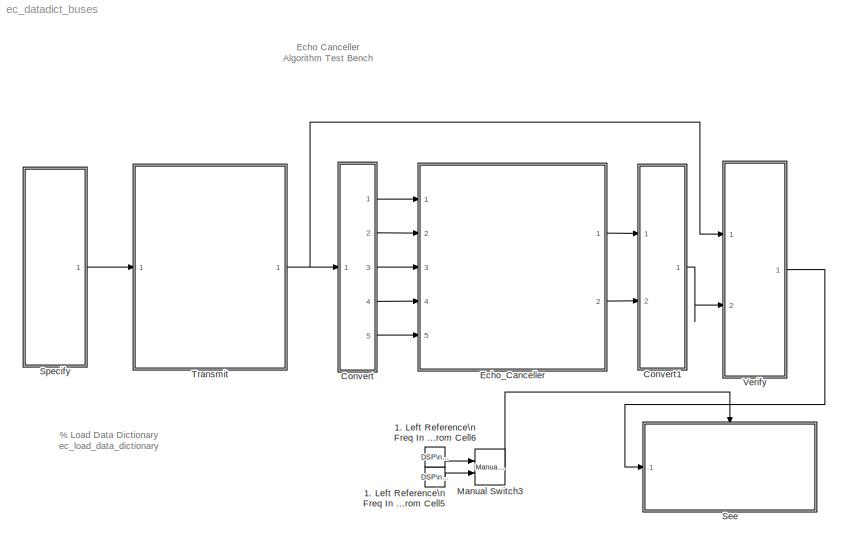
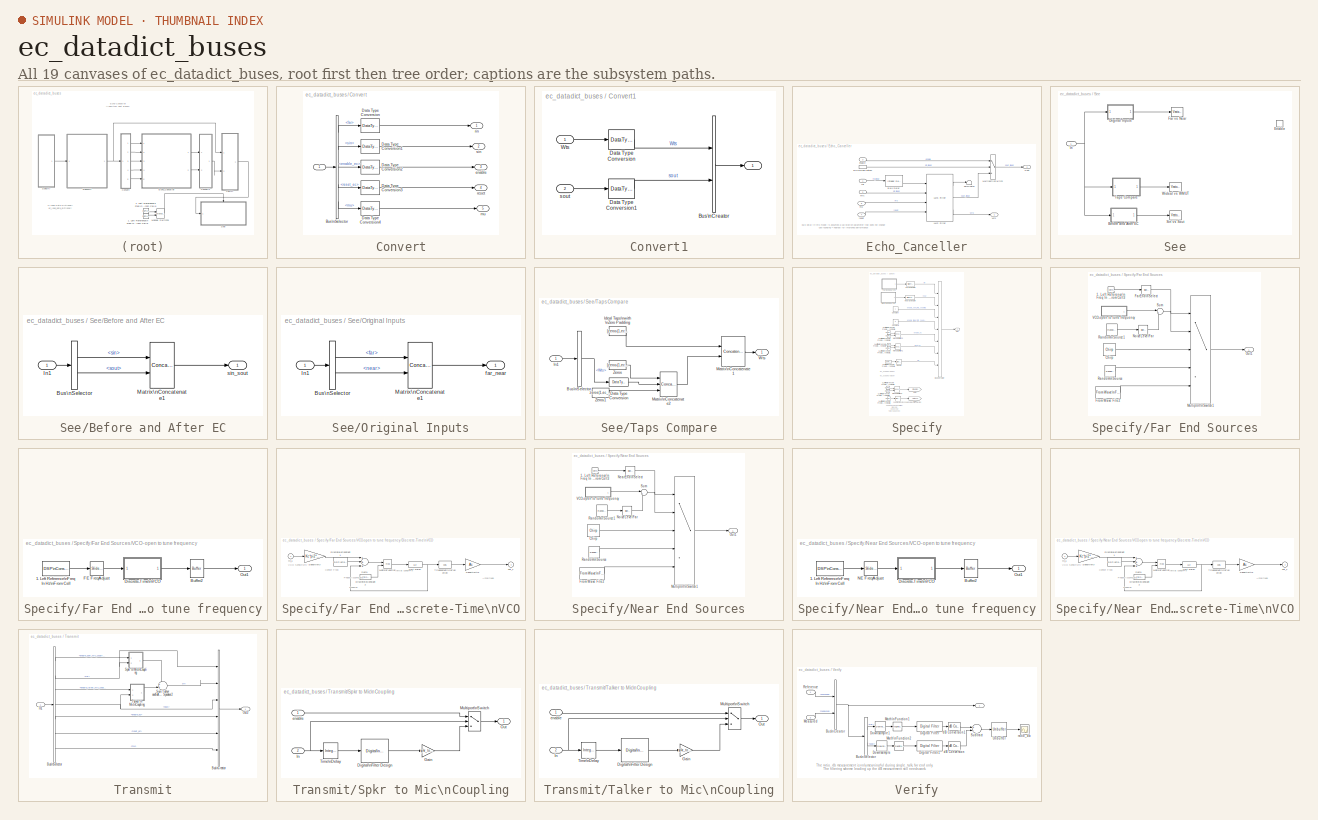
[diagram: thumbnail index - all 19 canvases of the model, root first then tree order]
MODEL ec_datadict_buses
KIND model
CONFIG PreLoadFcn = ec_data_fixpt_sc; 
CONFIG StartFcn = tic
CONFIG StopFcn = toc
BLOCK [Reference] 1. Left Reference\nFreq In Hz\nFrom Cell5  REF=dspsrcs4/DSP\nConstant
  FramebasedOutput = -inf
  FunctionWithSeparateData = off
  InterpretAs1D = -inf
  Ports = [0, 1]
  RTWMemSecDataConstants = Inherit from model
  RTWMemSecDataInternal = Inherit from model
  RTWMemSecDataParameters = Inherit from model
  RTWMemSecFuncExecute = Inherit from model
  RTWMemSecFuncInitTerm = Inherit from model
  SID = 1
  SampleMode = Discrete
  ShowPortLabels = FromPortIcon
  SourceBlock = dspsrcs4/DSP\nConstant
  SourceProductBaseCode = DS
  SourceProductName = DSP System Toolbox
  SourceType = DSP Constant
  SystemSampleTime = -1
  Ts = -inf
  Value = 0
  additionalParams = on
  allowOverrides = on
  continuousOutput = Sample-based
  dataType = double
  discreteOutput = Sample-based
  fracBitsMode = Best precision
  framePeriod = pic_frame_size/Fs
  isSigned = on
  numFracBits = 15
  sampTime = pic_frame_size/Fs
  udDataType = sfix(16)
  wordLen = 16
BLOCK [Reference] 1. Left Reference\nFreq In Hz\nFrom Cell6  REF=dspsrcs4/DSP\nConstant
  FramebasedOutput = -inf
  FunctionWithSeparateData = off
  InterpretAs1D = -inf
  Ports = [0, 1]
  RTWMemSecDataConstants = Inherit from model
  RTWMemSecDataInternal = Inherit from model
  RTWMemSecDataParameters = Inherit from model
  RTWMemSecFuncExecute = Inherit from model
  RTWMemSecFuncInitTerm = Inherit from model
  SID = 2
  SampleMode = Discrete
  ShowPortLabels = FromPortIcon
  SourceBlock = dspsrcs4/DSP\nConstant
  SourceProductBaseCode = DS
  SourceProductName = DSP System Toolbox
  SourceType = DSP Constant
  SystemSampleTime = -1
  Ts = -inf
  Value = 1
  additionalParams = on
  allowOverrides = on
  continuousOutput = Sample-based
  dataType = double
  discreteOutput = Sample-based
  fracBitsMode = Best precision
  framePeriod = pic_frame_size/Fs
  isSigned = on
  numFracBits = 15
  sampTime = pic_frame_size/Fs
  udDataType = sfix(16)
  wordLen = 16
BLOCK [SubSystem] Convert
  Ports = [1, 5]
  RequestExecContextInheritance = off
  SID = 3
BLOCK [Inport] Convert/  
  IconDisplay = Port number
  SID = 4
BLOCK [BusSelector] Convert/Bus\nSelector
  OutputAsBus = off
  OutputSignals = far,sin,enable_ec,reset_ec,mu
  Ports = [1, 5]
  SID = 5
BLOCK [DataTypeConversion] Convert/Data Type Conversion
  RndMeth = Floor
  SID = 6
BLOCK [DataTypeConversion] Convert/Data Type Conversion1
  RndMeth = Floor
  SID = 7
BLOCK [DataTypeConversion] Convert/Data Type Conversion2
  RndMeth = Floor
  SID = 8
BLOCK [DataTypeConversion] Convert/Data Type Conversion3
  RndMeth = Floor
  SID = 9
BLOCK [DataTypeConversion] Convert/Data Type Conversion4
  RndMeth = Floor
  SID = 10
BLOCK [Outport] Convert/enable
  IconDisplay = Port number
  Port = 3
  SID = 13
BLOCK [Outport] Convert/mu
  IconDisplay = Port number
  Port = 5
  SID = 15
BLOCK [Outport] Convert/reset
  IconDisplay = Port number
  Port = 4
  SID = 14
BLOCK [Outport] Convert/rin
  IconDisplay = Port number
  SID = 11
BLOCK [Outport] Convert/sin
  IconDisplay = Port number
  Port = 2
  SID = 12
BLOCK [SubSystem] Convert1
  Ports = [2, 1]
  RequestExecContextInheritance = off
  SID = 16
BLOCK [Outport] Convert1/ 
  IconDisplay = Port number
  SID = 22
BLOCK [BusCreator] Convert1/Bus\nCreator
  DisplayOption = bar
  InheritFromInputs = on
  Inputs = 2
  Ports = [2, 1]
  SID = 19
BLOCK [DataTypeConversion] Convert1/Data Type Conversion
  OutDataTypeStr = double
  RndMeth = Floor
  SID = 20
BLOCK [DataTypeConversion] Convert1/Data Type Conversion1
  OutDataTypeStr = double
  RndMeth = Floor
  SID = 21
BLOCK [Inport] Convert1/Wts
  IconDisplay = Port number
  SID = 17
BLOCK [Inport] Convert1/sout
  IconDisplay = Port number
  Port = 2
  SID = 18
BLOCK [SubSystem] Echo_Canceller
  MinMaxOverflowLogging = MinMaxAndOverflow
  Ports = [5, 2]
  RequestExecContextInheritance = off
  SID = 23
BLOCK [Inport] Echo_Canceller/  mic
  IconDisplay = Port number
  Port = 2
  SID = 25
BLOCK [InportShadow] Echo_Canceller/  mic\n(Duplicate2)
  IconDisplay = Port number
  Port = 2
  SID = 29
BLOCK [Inport] Echo_Canceller/ enable
  IconDisplay = Port number
  Port = 3
  SID = 26
BLOCK [Inport] Echo_Canceller/ far 
  IconDisplay = Port number
  SID = 24
BLOCK [Reference] Echo_Canceller/Bulk Delay  REF=dspobslib/Integer Delay
  Ports = [1, 1]
  SID = 30
  SourceBlock = dspobslib/Integer Delay
  SourceProductBaseCode = DS
  SourceProductName = DSP System Toolbox
  SourceType = Integer Delay
  delay = spkr_to_mic_delay % this compensates for the delay in the filter and the spkr to mic path
  ic = 0
  reset_popup = None
BLOCK [Reference] Echo_Canceller/LMS Filter  REF=dspadpt3/LMS Filter
  Adapt = off
  Algo = LMS
  L = ec_length
  LockScale = off
  MultiThreadCoSim = auto
  Ports = [4, 3]
  SID = 31
  ShowPortLabels = off
  SourceBlock = dspadpt3/LMS Filter
  SourceProductBaseCode = DS
  SourceProductName = DSP System Toolbox
  SourceType = LMS Filter
  accum2FracLength = LMS_Accum_FracLen
  accum2Mode = Binary point scaling
  accumFracLength = 20
  accumMode = Binary point scaling
  accumWordLength = LMS_Accum_WordLen
  addnparflag = off
  firstCoeffFracLength = 15
  firstCoeffMode = Same word length as first input
  firstCoeffWordLength = 16
  ic = 0
  leakage = 1.0
  memoryFracLength = LMS_Wts_FracLen
  memoryMode = Binary point scaling
  memoryWordLength = LMS_Wts_WordLen
  mu = 0.1
  overflowMode = off
  prodOutput2FracLength = LMS_Prod_FracLen
  prodOutput2Mode = Binary point scaling
  prodOutput3FracLength = LMS_Prod_FracLen
  prodOutput3Mode = Binary point scaling
  prodOutput4FracLength = LMS_Prod_FracLen
  prodOutput4Mode = Binary point scaling
  prodOutputFracLength = 20
  prodOutputMode = Binary point scaling
  prodOutputWordLength = LMS_Prod_WordLen
  quotientFracLength = 20
  quotientMode = Binary point scaling
  resetflag = Non-zero sample
  roundingMode = Nearest
  secondCoeffFracLength = 15
  secondCoeffMode = Binary point scaling
  secondCoeffWordLength = 2
  stepflag = Input port
  weights = on
BLOCK [MultiPortSwitch] Echo_Canceller/Multiport\nSwitch
  DataPortOrder = Zero-based contiguous
  InputSameDT = off
  Inputs = 2
  Ports = [3, 1]
  SID = 32
  SaturateOnIntegerOverflow = off
  zeroidx = on
BLOCK [Outport] Echo_Canceller/Sout
  IconDisplay = Port number
  Port = 2
  SID = 35
BLOCK [Terminator] Echo_Canceller/Terminator
  SID = 33
BLOCK [Outport] Echo_Canceller/Wts
  IconDisplay = Port number
  SID = 34
BLOCK [Inport] Echo_Canceller/mu
  IconDisplay = Port number
  Port = 5
  SID = 28
BLOCK [Inport] Echo_Canceller/reset
  IconDisplay = Port number
  Port = 4
  SID = 27
BLOCK [Reference] Manual Switch3  REF=simulink/Signal\nRouting/Manual Switch
  FunctionWithSeparateData = off
  Ports = [2, 1]
  RTWMemSecDataConstants = Inherit from model
  RTWMemSecDataInternal = Inherit from model
  RTWMemSecDataParameters = Inherit from model
  RTWMemSecFuncExecute = Inherit from model
  RTWMemSecFuncInitTerm = Inherit from model
  SID = 37
  ShowPortLabels = FromPortIcon
  SourceBlock = simulink/Signal\nRouting/Manual Switch
  SourceProductBaseCode = SL
  SourceProductName = Simulink
  SourceType = Manual Switch
  SystemSampleTime = -1
  action = 0
  sw = 1
  varsize = off
BLOCK [SubSystem] See
  Ports = [1, 0, 1]
  RequestExecContextInheritance = off
  SID = 38
BLOCK [SubSystem] See/Before and After EC
  Ports = [1, 1]
  RequestExecContextInheritance = off
  SID = 41
BLOCK [BusSelector] See/Before and After EC/Bus\nSelector
  OutputAsBus = off
  OutputSignals = reference.sin,measured.sout
  Ports = [1, 2]
  SID = 43
BLOCK [Inport] See/Before and After EC/In1
  IconDisplay = Port number
  SID = 42
BLOCK [Concatenate] See/Before and After EC/Matrix\nConcatenate1
  ConcatenateDimension = 2
  Mode = Multidimensional array
  Ports = [2, 1]
  SID = 44
BLOCK [Outport] See/Before and After EC/sin_sout
  IconDisplay = Port number
  SID = 45
BLOCK [EnablePort] See/Enable
  Ports = []
  SID = 40
BLOCK [Reference] See/Far vs Near  REF=dspsnks4/Vector\nScope
  AxisGrid = on
  AxisLegend = off
  AxisProperties = off
  AxisZoom = off
  DisplayProperties = off
  Domain = Time
  FigPos = [41 300 287 179]
  FrameNumber = on
  HorizSpan = 1
  InheritXIncr = on
  LineColors = r|g
  LineProperties = off
  Memory = off
  OpenScopeAtSimStart = on
  OpenScopeImmediately = off
  Ports = [1]
  SID = 46
  ScopeProperties = on
  ShowPortLabels = off
  SourceBlock = dspsnks4/Vector\nScope
  SourceProductBaseCode = DS
  SourceProductName = DSP System Toolbox
  SourceType = Vector Scope
  XIncr = 1
  XLabel = Time
  XLimit = Auto
  XMax = 1
  XMin = 0
  XRange = [0...Fs/2]
  XStart = 0
  XUnits = Hertz
  YLabel = Amplitude
  YMax = 0.903014948842516
  YMin = -0.904474745892036
  YUnits = dB
BLOCK [Inport] See/In
  IconDisplay = Port number
  SID = 39
BLOCK [SubSystem] See/Original Inputs
  Ports = [1, 1]
  RequestExecContextInheritance = off
  SID = 47
BLOCK [BusSelector] See/Original Inputs/Bus\nSelector
  OutputAsBus = off
  OutputSignals = reference.far,reference.near
  Ports = [1, 2]
  SID = 49
BLOCK [Inport] See/Original Inputs/In1
  IconDisplay = Port number
  SID = 48
BLOCK [Concatenate] See/Original Inputs/Matrix\nConcatenate1
  ConcatenateDimension = 2
  Mode = Multidimensional array
  Ports = [2, 1]
  SID = 50
BLOCK [Outport] See/Original Inputs/far_near
  IconDisplay = Port number
  SID = 51
BLOCK [Reference] See/Sin vs Sout  REF=dspsnks4/Vector\nScope
  AxisGrid = on
  AxisLegend = off
  AxisProperties = off
  AxisZoom = off
  DisplayProperties = off
  Domain = Time
  FigPos = [339 300 287 179]
  FrameNumber = on
  HorizSpan = 1
  InheritXIncr = on
  LineColors = r|g
  LineProperties = off
  Memory = off
  OpenScopeAtSimStart = on
  OpenScopeImmediately = off
  Ports = [1]
  SID = 52
  ScopeProperties = on
  ShowPortLabels = off
  SourceBlock = dspsnks4/Vector\nScope
  SourceProductBaseCode = DS
  SourceProductName = DSP System Toolbox
  SourceType = Vector Scope
  XIncr = 1
  XLabel = Time
  XLimit = Auto
  XMax = 1
  XMin = 0
  XRange = [0...Fs/2]
  XStart = 0
  XUnits = Hertz
  YLabel = Amplitude
  YMax = 0.903014948842516
  YMin = -0.904474745892036
  YUnits = dB
BLOCK [SubSystem] See/Taps Compare
  Ports = [1, 1]
  RequestExecContextInheritance = off
  SID = 53
BLOCK [BusSelector] See/Taps Compare/Bus\nSelector
  OutputAsBus = off
  OutputSignals = measured.Wts
  Ports = [1, 1]
  SID = 55
BLOCK [DataTypeConversion] See/Taps Compare/Data Type Conversion
  RndMeth = Floor
  SID = 56
  SaturateOnIntegerOverflow = off
BLOCK [Constant] See/Taps Compare/Ideal Taps\nwith \nZero Padding
  FramePeriod = pic_frame_size/Fs
  SID = 57
  SampleTime = pic_frame_size/Fs
  SamplingMode = Frame based
  Value = [zeros(1,ec_window_len/2 -  length(spkr_to_mic_filter)/2) spkr_to_mic_filter zeros(1,ec_window_len/2 -  length(spkr_to_mic_filter)/2)]
BLOCK [Inport] See/Taps Compare/In1
  IconDisplay = Port number
  SID = 54
BLOCK [Concatenate] See/Taps Compare/Matrix\nConcatenate1
  ConcatenateDimension = 2
  Mode = Multidimensional array
  Ports = [2, 1]
  SID = 58
BLOCK [Concatenate] See/Taps Compare/Matrix\nConcatenate2
  NumInputs = 3
  Ports = [3, 1]
  SID = 59
BLOCK [Outport] See/Taps Compare/Wts
  IconDisplay = Port number
  SID = 62
BLOCK [Constant] See/Taps Compare/Zeros
  FramePeriod = pic_frame_size/Fs
  SID = 60
  SampleTime = pic_frame_size/Fs
  SamplingMode = Frame based
  Value = [zeros(1,ec_window_len/2 -  ec_length/2) ]
BLOCK [Constant] See/Taps Compare/Zeros1
  FramePeriod = pic_frame_size/Fs
  SID = 61
  SampleTime = pic_frame_size/Fs
  SamplingMode = Frame based
  Value = zeros(1,ec_window_len/2 -  ec_length/2)
BLOCK [Reference] See/Wideal vs WMUT  REF=dspsnks4/Vector\nScope
  AxisGrid = on
  AxisLegend = off
  AxisProperties = off
  AxisZoom = off
  DisplayProperties = off
  Domain = Time
  FigPos = [637 300 318 179]
  FrameNumber = on
  HorizSpan = 1
  InheritXIncr = on
  LineColors = r|g
  LineProperties = off
  Memory = off
  OpenScopeAtSimStart = on
  OpenScopeImmediately = off
  Ports = [1]
  SID = 63
  ScopeProperties = on
  ShowPortLabels = off
  SourceBlock = dspsnks4/Vector\nScope
  SourceProductBaseCode = DS
  SourceProductName = DSP System Toolbox
  SourceType = Vector Scope
  XIncr = 1
  XLabel = Time
  XLimit = User-defined
  XMax = 6
  XMin = 4
  XRange = [0...Fs/2]
  XStart = 0
  XUnits = Hertz
  YLabel = Amplitude
  YMax = 0.392086848285075
  YMin = -0.0718456241378401
  YUnits = dB
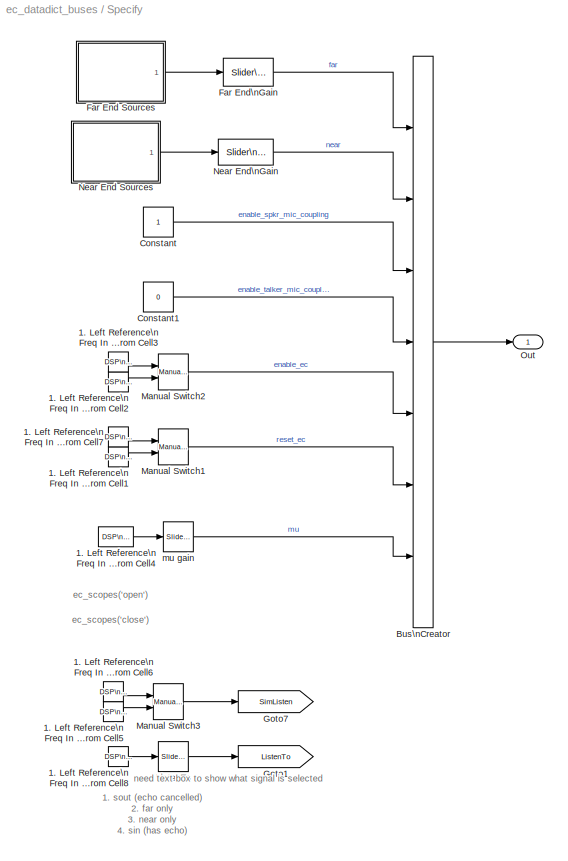
BLOCK [SubSystem] Specify
  Ports = [0, 1]
  RequestExecContextInheritance = off
  SID = 64
BLOCK [Reference] Specify/1. Left Reference\nFreq In Hz\nFrom Cell1  REF=dspsrcs4/DSP\nConstant
  FramebasedOutput = -inf
  FunctionWithSeparateData = off
  InterpretAs1D = -inf
  Ports = [0, 1]
  RTWMemSecDataConstants = Inherit from model
  RTWMemSecDataInternal = Inherit from model
  RTWMemSecDataParameters = Inherit from model
  RTWMemSecFuncExecute = Inherit from model
  RTWMemSecFuncInitTerm = Inherit from model
  SID = 65
  SampleMode = Discrete
  ShowPortLabels = FromPortIcon
  SourceBlock = dspsrcs4/DSP\nConstant
  SourceProductBaseCode = DS
  SourceProductName = DSP System Toolbox
  SourceType = DSP Constant
  SystemSampleTime = -1
  Ts = -inf
  Value = 0
  additionalParams = on
  allowOverrides = on
  continuousOutput = Sample-based
  dataType = double
  discreteOutput = Sample-based
  fracBitsMode = Best precision
  framePeriod = pic_frame_size/Fs
  isSigned = on
  numFracBits = 15
  sampTime = pic_frame_size/Fs
  udDataType = sfix(16)
  wordLen = 16
BLOCK [Reference] Specify/1. Left Reference\nFreq In Hz\nFrom Cell2  REF=dspsrcs4/DSP\nConstant
  FramebasedOutput = -inf
  FunctionWithSeparateData = off
  InterpretAs1D = -inf
  Ports = [0, 1]
  RTWMemSecDataConstants = Inherit from model
  RTWMemSecDataInternal = Inherit from model
  RTWMemSecDataParameters = Inherit from model
  RTWMemSecFuncExecute = Inherit from model
  RTWMemSecFuncInitTerm = Inherit from model
  SID = 66
  SampleMode = Discrete
  ShowPortLabels = FromPortIcon
  SourceBlock = dspsrcs4/DSP\nConstant
  SourceProductBaseCode = DS
  SourceProductName = DSP System Toolbox
  SourceType = DSP Constant
  SystemSampleTime = -1
  Ts = -inf
  Value = 0
  additionalParams = on
  allowOverrides = on
  continuousOutput = Sample-based
  dataType = double
  discreteOutput = Sample-based
  fracBitsMode = Best precision
  framePeriod = pic_frame_size/Fs
  isSigned = on
  numFracBits = 15
  sampTime = pic_frame_size/Fs
  udDataType = sfix(16)
  wordLen = 16
BLOCK [Reference] Specify/1. Left Reference\nFreq In Hz\nFrom Cell3  REF=dspsrcs4/DSP\nConstant
  FramebasedOutput = -inf
  FunctionWithSeparateData = off
  InterpretAs1D = -inf
  Ports = [0, 1]
  RTWMemSecDataConstants = Inherit from model
  RTWMemSecDataInternal = Inherit from model
  RTWMemSecDataParameters = Inherit from model
  RTWMemSecFuncExecute = Inherit from model
  RTWMemSecFuncInitTerm = Inherit from model
  SID = 67
  SampleMode = Discrete
  ShowPortLabels = FromPortIcon
  SourceBlock = dspsrcs4/DSP\nConstant
  SourceProductBaseCode = DS
  SourceProductName = DSP System Toolbox
  SourceType = DSP Constant
  SystemSampleTime = -1
  Ts = -inf
  Value = 1
  additionalParams = on
  allowOverrides = on
  continuousOutput = Sample-based
  dataType = double
  discreteOutput = Sample-based
  fracBitsMode = Best precision
  framePeriod = pic_frame_size/Fs
  isSigned = on
  numFracBits = 15
  sampTime = pic_frame_size/Fs
  udDataType = sfix(16)
  wordLen = 16
BLOCK [Reference] Specify/1. Left Reference\nFreq In Hz\nFrom Cell4  REF=dspsrcs4/DSP\nConstant
  FramebasedOutput = -inf
  FunctionWithSeparateData = off
  InterpretAs1D = -inf
  Ports = [0, 1]
  RTWMemSecDataConstants = Inherit from model
  RTWMemSecDataInternal = Inherit from model
  RTWMemSecDataParameters = Inherit from model
  RTWMemSecFuncExecute = Inherit from model
  RTWMemSecFuncInitTerm = Inherit from model
  SID = 68
  SampleMode = Discrete
  ShowPortLabels = FromPortIcon
  SourceBlock = dspsrcs4/DSP\nConstant
  SourceProductBaseCode = DS
  SourceProductName = DSP System Toolbox
  SourceType = DSP Constant
  SystemSampleTime = -1
  Ts = -inf
  Value = .001
  additionalParams = on
  allowOverrides = on
  continuousOutput = Sample-based
  dataType = double
  discreteOutput = Sample-based
  fracBitsMode = Best precision
  framePeriod = 2
  isSigned = on
  numFracBits = 15
  sampTime = pic_frame_size/Fs
  udDataType = sfix(16)
  wordLen = 16
BLOCK [Reference] Specify/1. Left Reference\nFreq In Hz\nFrom Cell5  REF=dspsrcs4/DSP\nConstant
  FramebasedOutput = -inf
  FunctionWithSeparateData = off
  InterpretAs1D = -inf
  Ports = [0, 1]
  RTWMemSecDataConstants = Inherit from model
  RTWMemSecDataInternal = Inherit from model
  RTWMemSecDataParameters = Inherit from model
  RTWMemSecFuncExecute = Inherit from model
  RTWMemSecFuncInitTerm = Inherit from model
  SID = 69
  SampleMode = Discrete
  ShowPortLabels = FromPortIcon
  SourceBlock = dspsrcs4/DSP\nConstant
  SourceProductBaseCode = DS
  SourceProductName = DSP System Toolbox
  SourceType = DSP Constant
  SystemSampleTime = -1
  Ts = -inf
  Value = 0
  additionalParams = on
  allowOverrides = on
  continuousOutput = Sample-based
  dataType = double
  discreteOutput = Sample-based
  fracBitsMode = Best precision
  framePeriod = pic_frame_size/Fs
  isSigned = on
  numFracBits = 15
  sampTime = pic_frame_size/Fs
  udDataType = sfix(16)
  wordLen = 16
BLOCK [Reference] Specify/1. Left Reference\nFreq In Hz\nFrom Cell6  REF=dspsrcs4/DSP\nConstant
  FramebasedOutput = -inf
  FunctionWithSeparateData = off
  InterpretAs1D = -inf
  Ports = [0, 1]
  RTWMemSecDataConstants = Inherit from model
  RTWMemSecDataInternal = Inherit from model
  RTWMemSecDataParameters = Inherit from model
  RTWMemSecFuncExecute = Inherit from model
  RTWMemSecFuncInitTerm = Inherit from model
  SID = 70
  SampleMode = Discrete
  ShowPortLabels = FromPortIcon
  SourceBlock = dspsrcs4/DSP\nConstant
  SourceProductBaseCode = DS
  SourceProductName = DSP System Toolbox
  SourceType = DSP Constant
  SystemSampleTime = -1
  Ts = -inf
  Value = 1
  additionalParams = on
  allowOverrides = on
  continuousOutput = Sample-based
  dataType = double
  discreteOutput = Sample-based
  fracBitsMode = Best precision
  framePeriod = pic_frame_size/Fs
  isSigned = on
  numFracBits = 15
  sampTime = pic_frame_size/Fs
  udDataType = sfix(16)
  wordLen = 16
BLOCK [Reference] Specify/1. Left Reference\nFreq In Hz\nFrom Cell7  REF=dspsrcs4/DSP\nConstant
  FramebasedOutput = -inf
  FunctionWithSeparateData = off
  InterpretAs1D = -inf
  Ports = [0, 1]
  RTWMemSecDataConstants = Inherit from model
  RTWMemSecDataInternal = Inherit from model
  RTWMemSecDataParameters = Inherit from model
  RTWMemSecFuncExecute = Inherit from model
  RTWMemSecFuncInitTerm = Inherit from model
  SID = 71
  SampleMode = Discrete
  ShowPortLabels = FromPortIcon
  SourceBlock = dspsrcs4/DSP\nConstant
  SourceProductBaseCode = DS
  SourceProductName = DSP System Toolbox
  SourceType = DSP Constant
  SystemSampleTime = -1
  Ts = -inf
  Value = 1
  additionalParams = on
  allowOverrides = on
  continuousOutput = Sample-based
  dataType = double
  discreteOutput = Sample-based
  fracBitsMode = Best precision
  framePeriod = pic_frame_size/Fs
  isSigned = on
  numFracBits = 15
  sampTime = pic_frame_size/Fs
  udDataType = sfix(16)
  wordLen = 16
BLOCK [Reference] Specify/1. Left Reference\nFreq In Hz\nFrom Cell8  REF=dspsrcs4/DSP\nConstant
  FramebasedOutput = -inf
  FunctionWithSeparateData = off
  InterpretAs1D = -inf
  Ports = [0, 1]
  RTWMemSecDataConstants = Inherit from model
  RTWMemSecDataInternal = Inherit from model
  RTWMemSecDataParameters = Inherit from model
  RTWMemSecFuncExecute = Inherit from model
  RTWMemSecFuncInitTerm = Inherit from model
  SID = 72
  SampleMode = Discrete
  ShowPortLabels = FromPortIcon
  SourceBlock = dspsrcs4/DSP\nConstant
  SourceProductBaseCode = DS
  SourceProductName = DSP System Toolbox
  SourceType = DSP Constant
  SystemSampleTime = -1
  Ts = -inf
  Value = 1
  additionalParams = on
  allowOverrides = on
  continuousOutput = Sample-based
  dataType = double
  discreteOutput = Sample-based
  fracBitsMode = Best precision
  framePeriod = 2
  isSigned = on
  numFracBits = 15
  sampTime = pic_frame_size/Fs
  udDataType = sfix(16)
  wordLen = 16
BLOCK [BusCreator] Specify/Bus\nCreator
  DisplayOption = bar
  InheritFromInputs = on
  Inputs = 7
  Ports = [7, 1]
  SID = 73
BLOCK [Constant] Specify/Constant
  SID = 74
BLOCK [Constant] Specify/Constant1
  SID = 75
  Value = 0
BLOCK [SubSystem] Specify/Far End Sources
  Ports = [0, 1]
  RequestExecContextInheritance = off
  SID = 77
BLOCK [Reference] Specify/Far End Sources/1. Left Reference\nFreq In Hz\nFrom Cell3  REF=dspsrcs4/DSP\nConstant
  FramebasedOutput = -inf
  FunctionWithSeparateData = off
  InterpretAs1D = -inf
  Ports = [0, 1]
  RTWMemSecDataConstants = Inherit from model
  RTWMemSecDataInternal = Inherit from model
  RTWMemSecDataParameters = Inherit from model
  RTWMemSecFuncExecute = Inherit from model
  RTWMemSecFuncInitTerm = Inherit from model
  SID = 78
  SampleMode = Discrete
  ShowPortLabels = FromPortIcon
  SourceBlock = dspsrcs4/DSP\nConstant
  SourceProductBaseCode = DS
  SourceProductName = DSP System Toolbox
  SourceType = DSP Constant
  SystemSampleTime = -1
  Ts = -inf
  Value = 1
  additionalParams = on
  allowOverrides = on
  continuousOutput = Sample-based
  dataType = double
  discreteOutput = Sample-based
  fracBitsMode = Best precision
  framePeriod = 2
  isSigned = on
  numFracBits = 15
  sampTime = pic_frame_size/Fs
  udDataType = sfix(16)
  wordLen = 16
BLOCK [Reference] Specify/Far End Sources/Chirp  REF=dspsrcs4/Chirp
  Ports = [0, 1]
  SID = 79
  SourceBlock = dspsrcs4/Chirp
  SourceProductBaseCode = DS
  SourceProductName = DSP System Toolbox
  SourceType = Chirp
  Ts = 1/Fs
  Tsweep = pic_frame_size/Fs
  datatype = Double
  f0 = 100
  f1 = 4000
  mode = Unidirectional
  phase = 0
  spf = pic_frame_size
  sweep = Linear
  t1 = pic_frame_size/Fs
BLOCK [Reference] Specify/Far End Sources/FarEnd\nSelect  REF=simulink/Math\nOperations/Slider\nGain
  FunctionWithSeparateData = off
  Ports = [1, 1]
  RTWMemSecDataConstants = Inherit from model
  RTWMemSecDataInternal = Inherit from model
  RTWMemSecDataParameters = Inherit from model
  RTWMemSecFuncExecute = Inherit from model
  RTWMemSecFuncInitTerm = Inherit from model
  SID = 80
  ShowPortLabels = FromPortIcon
  SourceBlock = simulink/Math\nOperations/Slider\nGain
  SourceProductBaseCode = SL
  SourceProductName = Simulink
  SourceType = Slider Gain
  SystemSampleTime = -1
  gain = 3
  high = 10
  low = 0
BLOCK [Reference] Specify/Far End Sources/From Wave File2  REF=dspwin32/From Wave\nFile
  FileName = far_end.wav
  MinBufSize = 80
  Ports = [0, 1]
  SID = 81
  SamplesPerFrame = 80
  SourceBlock = dspwin32/From Wave\nFile
  SourceProductBaseCode = DS
  SourceProductName = DSP System Toolbox
  SourceType = From Wave File
  bLoop = on
  dType = double
  firstSampleOutput = off
  lastSampleOutput = off
  restartMode = immediately after last sample
  timesToPlay = inf
BLOCK [MultiPortSwitch] Specify/Far End Sources/Multiport\nSwitch1
  InputSameDT = off
  Inputs = 4
  Ports = [5, 1]
  SID = 82
  SampleTime = pic_frame_size/Fs
  SaturateOnIntegerOverflow = off
BLOCK [Reference] Specify/Far End Sources/NoiseLevelFar  REF=simulink/Math\nOperations/Slider\nGain
  FunctionWithSeparateData = off
  Ports = [1, 1]
  RTWMemSecDataConstants = Inherit from model
  RTWMemSecDataInternal = Inherit from model
  RTWMemSecDataParameters = Inherit from model
  RTWMemSecFuncExecute = Inherit from model
  RTWMemSecFuncInitTerm = Inherit from model
  SID = 83
  ShowPortLabels = FromPortIcon
  SourceBlock = simulink/Math\nOperations/Slider\nGain
  SourceProductBaseCode = SL
  SourceProductName = Simulink
  SourceType = Slider Gain
  SystemSampleTime = -1
  gain = 0.01
  high = 1
  low = 0
BLOCK [Outport] Specify/Far End Sources/Out1
  IconDisplay = Port number
  SID = 108
BLOCK [Reference] Specify/Far End Sources/Random\nSource  REF=dspsrcs4/Random\nSource
  CltLength = 12
  DataType = Double
  IsInherit = off
  MaxVal = 1
  MeanVal = 0
  MinVal = 0
  NormMethod = Ziggurat
  OutComplex = Real
  Ports = [0, 1]
  RepMode = Not repeatable
  SID = 84
  SampFrame = pic_frame_size
  SampMode = Discrete
  SampTime = 1/Fs
  SourceBlock = dspsrcs4/Random\nSource
  SourceProductBaseCode = DS
  SourceProductName = DSP System Toolbox
  SourceType = Random Source
  SrcType = Gaussian
  UserData = DataTag0
  UserDataPersistent = on
  VarVal = 1
  rawSeed = 1
BLOCK [Reference] Specify/Far End Sources/Random\nSource1  REF=dspsrcs4/Random\nSource
  CltLength = 12
  DataType = Double
  IsInherit = off
  MaxVal = 1
  MeanVal = 0
  MinVal = 0
  NormMethod = Ziggurat
  OutComplex = Real
  Ports = [0, 1]
  RepMode = Not repeatable
  SID = 85
  SampFrame = pic_frame_size
  SampMode = Discrete
  SampTime = 1/Fs
  SourceBlock = dspsrcs4/Random\nSource
  SourceProductBaseCode = DS
  SourceProductName = DSP System Toolbox
  SourceType = Random Source
  SrcType = Gaussian
  UserData = DataTag1
  UserDataPersistent = on
  VarVal = 1
  rawSeed = 1
BLOCK [Sum] Specify/Far End Sources/Sum
  IconShape = round
  InputSameDT = off
  Inputs = |++
  OutDataTypeStr = Inherit: Inherit via internal rule
  Ports = [2, 1]
  SID = 86
  SaturateOnIntegerOverflow = off
BLOCK [SubSystem] Specify/Far End Sources/VCO-open to tune frequency
  Ports = [0, 1]
  RequestExecContextInheritance = off
  SID = 87
BLOCK [Reference] Specify/Far End Sources/VCO-open to tune frequency/1. Left Reference\nFreq In Hz\nFrom Cell  REF=dspsrcs4/DSP\nConstant
  FramebasedOutput = -inf
  FunctionWithSeparateData = off
  InterpretAs1D = -inf
  Ports = [0, 1]
  RTWMemSecDataConstants = Inherit from model
  RTWMemSecDataInternal = Inherit from model
  RTWMemSecDataParameters = Inherit from model
  RTWMemSecFuncExecute = Inherit from model
  RTWMemSecFuncInitTerm = Inherit from model
  SID = 88
  SampleMode = Discrete
  ShowPortLabels = FromPortIcon
  SourceBlock = dspsrcs4/DSP\nConstant
  SourceProductBaseCode = DS
  SourceProductName = DSP System Toolbox
  SourceType = DSP Constant
  SystemSampleTime = -1
  Ts = -inf
  Value = 1000
  additionalParams = on
  allowOverrides = on
  continuousOutput = Sample-based
  dataType = double
  discreteOutput = Sample-based
  fracBitsMode = Best precision
  framePeriod = 2
  isSigned = on
  numFracBits = 15
  sampTime = 1/Fs
  udDataType = sfix(16)
  wordLen = 16
BLOCK [Reference] Specify/Far End Sources/VCO-open to tune frequency/Buffer2  REF=dspbuff3/Buffer
  N = pic_frame_size
  Ports = [1, 1]
  SID = 89
  SourceBlock = dspbuff3/Buffer
  SourceProductBaseCode = DS
  SourceProductName = DSP System Toolbox
  SourceType = Buffer
  V = 0
  ic = 0
BLOCK [SubSystem] Specify/Far End Sources/VCO-open to tune frequency/Discrete-Time\nVCO
  Ports = [1, 1]
  RequestExecContextInheritance = off
  SID = 90
BLOCK [Reference] Specify/Far End Sources/VCO-open to tune frequency/Discrete-Time\nVCO/Discrete\nConstant1  REF=dspsrcs4/DSP\nConstant
  FramebasedOutput = off
  FunctionWithSeparateData = off
  InterpretAs1D = on
  Ports = [0, 1]
  RTWMemSecDataConstants = Inherit from model
  RTWMemSecDataInternal = Inherit from model
  RTWMemSecDataParameters = Inherit from model
  RTWMemSecFuncExecute = Inherit from model
  RTWMemSecFuncInitTerm = Inherit from model
  SID = 92
  SampleMode = Discrete
  ShowPortLabels = FromPortIcon
  SourceBlock = dspsrcs4/DSP\nConstant
  SourceProductBaseCode = DS
  SourceProductName = DSP System Toolbox
  SourceType = DSP Constant
  SystemSampleTime = -1
  Ts = 1/8000
  Value = Fc*pi2*ts
  additionalParams = on
  allowOverrides = on
  continuousOutput = Sample-based
  dataType = Inherit via back propagation
  discreteOutput = Sample-based (interpret vectors as 1-D)
  fracBitsMode = Best precision
  framePeriod = 1/8000
  isSigned = on
  numFracBits = 15
  sampTime = 1/8000
  udDataType = sfix(16)
  wordLen = 16
BLOCK [Reference] Specify/Far End Sources/VCO-open to tune frequency/Discrete-Time\nVCO/Discrete\nConstant2  REF=dspsrcs4/DSP\nConstant
  FramebasedOutput = off
  FunctionWithSeparateData = off
  InterpretAs1D = on
  Ports = [0, 1]
  RTWMemSecDataConstants = Inherit from model
  RTWMemSecDataInternal = Inherit from model
  RTWMemSecDataParameters = Inherit from model
  RTWMemSecFuncExecute = Inherit from model
  RTWMemSecFuncInitTerm = Inherit from model
  SID = 93
  SampleMode = Discrete
  ShowPortLabels = FromPortIcon
  SourceBlock = dspsrcs4/DSP\nConstant
  SourceProductBaseCode = DS
  SourceProductName = DSP System Toolbox
  SourceType = DSP Constant
  SystemSampleTime = -1
  Ts = 1/8000
  Value = pi2
  additionalParams = on
  allowOverrides = on
  continuousOutput = Sample-based
  dataType = Inherit via back propagation
  discreteOutput = Sample-based (interpret vectors as 1-D)
  fracBitsMode = Best precision
  framePeriod = 1/8000
  isSigned = on
  numFracBits = 15
  sampTime = 1/8000
  udDataType = sfix(16)
  wordLen = 16
BLOCK [Math] Specify/Far End Sources/VCO-open to tune frequency/Discrete-Time\nVCO/Math\nFunction
  Operator = mod
  Ports = [2, 1]
  SID = 94
BLOCK [Gain] Specify/Far End Sources/VCO-open to tune frequency/Discrete-Time\nVCO/Sensitivity
  Gain = Kc*pi2*ts
  SID = 95
BLOCK [Gain] Specify/Far End Sources/VCO-open to tune frequency/Discrete-Time\nVCO/Sensitivity2
  Gain = Ac
  SID = 96
BLOCK [Sum] Specify/Far End Sources/VCO-open to tune frequency/Discrete-Time\nVCO/Sum1
  Inputs = +++
  Ports = [3, 1]
  SID = 97
BLOCK [Trigonometry] Specify/Far End Sources/VCO-open to tune frequency/Discrete-Time\nVCO/Trigonometric\nFunction
  Operator = cos
  Ports = [1, 1]
  SID = 98
BLOCK [UnitDelay] Specify/Far End Sources/VCO-open to tune frequency/Discrete-Time\nVCO/Unit Delay
  InitialCondition = Ph
  SID = 99
  SampleTime = ts
BLOCK [Inport] Specify/Far End Sources/VCO-open to tune frequency/Discrete-Time\nVCO/in_1
  IconDisplay = Port number
  SID = 91
BLOCK [Outport] Specify/Far End Sources/VCO-open to tune frequency/Discrete-Time\nVCO/out_1
  IconDisplay = Port number
  InitialOutput = 0
  SID = 100
BLOCK [Reference] Specify/Far End Sources/VCO-open to tune frequency/FE FreqAdjust  REF=simulink/Math\nOperations/Slider\nGain
  FunctionWithSeparateData = off
  Ports = [1, 1]
  RTWMemSecDataConstants = Inherit from model
  RTWMemSecDataInternal = Inherit from model
  RTWMemSecDataParameters = Inherit from model
  RTWMemSecFuncExecute = Inherit from model
  RTWMemSecFuncInitTerm = Inherit from model
  SID = 106
  ShowPortLabels = FromPortIcon
  SourceBlock = simulink/Math\nOperations/Slider\nGain
  SourceProductBaseCode = SL
  SourceProductName = Simulink
  SourceType = Slider Gain
  SystemSampleTime = -1
  gain = 1.1
  high = 5
  low = 0
BLOCK [Outport] Specify/Far End Sources/VCO-open to tune frequency/Out1
  IconDisplay = Port number
  SID = 107
BLOCK [Reference] Specify/Far End\nGain  REF=simulink/Math\nOperations/Slider\nGain
  FunctionWithSeparateData = off
  Ports = [1, 1]
  RTWMemSecDataConstants = Inherit from model
  RTWMemSecDataInternal = Inherit from model
  RTWMemSecDataParameters = Inherit from model
  RTWMemSecFuncExecute = Inherit from model
  RTWMemSecFuncInitTerm = Inherit from model
  SID = 76
  ShowPortLabels = FromPortIcon
  SourceBlock = simulink/Math\nOperations/Slider\nGain
  SourceProductBaseCode = SL
  SourceProductName = Simulink
  SourceType = Slider Gain
  SystemSampleTime = -1
  gain = 0.2
  high = 10
  low = 0
BLOCK [Goto] Specify/Goto1
  GotoTag = ListenTo
  SID = 109
  TagVisibility = global
BLOCK [Goto] Specify/Goto7
  GotoTag = SimListen
  SID = 110
  TagVisibility = global
BLOCK [Reference] Specify/ListenTo  REF=simulink/Math\nOperations/Slider\nGain
  FunctionWithSeparateData = off
  Ports = [1, 1]
  RTWMemSecDataConstants = Inherit from model
  RTWMemSecDataInternal = Inherit from model
  RTWMemSecDataParameters = Inherit from model
  RTWMemSecFuncExecute = Inherit from model
  RTWMemSecFuncInitTerm = Inherit from model
  SID = 111
  ShowPortLabels = FromPortIcon
  SourceBlock = simulink/Math\nOperations/Slider\nGain
  SourceProductBaseCode = SL
  SourceProductName = Simulink
  SourceType = Slider Gain
  SystemSampleTime = -1
  gain = 1
  high = 10
  low = 0
BLOCK [Reference] Specify/Manual Switch1  REF=simulink/Signal\nRouting/Manual Switch
  FunctionWithSeparateData = off
  Ports = [2, 1]
  RTWMemSecDataConstants = Inherit from model
  RTWMemSecDataInternal = Inherit from model
  RTWMemSecDataParameters = Inherit from model
  RTWMemSecFuncExecute = Inherit from model
  RTWMemSecFuncInitTerm = Inherit from model
  SID = 112
  ShowPortLabels = FromPortIcon
  SourceBlock = simulink/Signal\nRouting/Manual Switch
  SourceProductBaseCode = SL
  SourceProductName = Simulink
  SourceType = Manual Switch
  SystemSampleTime = -1
  action = 0
  sw = 0
  varsize = off
BLOCK [Reference] Specify/Manual Switch2  REF=simulink/Signal\nRouting/Manual Switch
  FunctionWithSeparateData = off
  Ports = [2, 1]
  RTWMemSecDataConstants = Inherit from model
  RTWMemSecDataInternal = Inherit from model
  RTWMemSecDataParameters = Inherit from model
  RTWMemSecFuncExecute = Inherit from model
  RTWMemSecFuncInitTerm = Inherit from model
  SID = 113
  ShowPortLabels = FromPortIcon
  SourceBlock = simulink/Signal\nRouting/Manual Switch
  SourceProductBaseCode = SL
  SourceProductName = Simulink
  SourceType = Manual Switch
  SystemSampleTime = -1
  action = 0
  sw = 1
  varsize = off
BLOCK [Reference] Specify/Manual Switch3  REF=simulink/Signal\nRouting/Manual Switch
  FunctionWithSeparateData = off
  Ports = [2, 1]
  RTWMemSecDataConstants = Inherit from model
  RTWMemSecDataInternal = Inherit from model
  RTWMemSecDataParameters = Inherit from model
  RTWMemSecFuncExecute = Inherit from model
  RTWMemSecFuncInitTerm = Inherit from model
  SID = 114
  ShowPortLabels = FromPortIcon
  SourceBlock = simulink/Signal\nRouting/Manual Switch
  SourceProductBaseCode = SL
  SourceProductName = Simulink
  SourceType = Manual Switch
  SystemSampleTime = -1
  action = 0
  sw = 0
  varsize = off
BLOCK [SubSystem] Specify/Near End Sources
  Ports = [0, 1]
  RequestExecContextInheritance = off
  SID = 116
BLOCK [Reference] Specify/Near End Sources/1. Left Reference\nFreq In Hz\nFrom Cell3  REF=dspsrcs4/DSP\nConstant
  FramebasedOutput = -inf
  FunctionWithSeparateData = off
  InterpretAs1D = -inf
  Ports = [0, 1]
  RTWMemSecDataConstants = Inherit from model
  RTWMemSecDataInternal = Inherit from model
  RTWMemSecDataParameters = Inherit from model
  RTWMemSecFuncExecute = Inherit from model
  RTWMemSecFuncInitTerm = Inherit from model
  SID = 117
  SampleMode = Discrete
  ShowPortLabels = FromPortIcon
  SourceBlock = dspsrcs4/DSP\nConstant
  SourceProductBaseCode = DS
  SourceProductName = DSP System Toolbox
  SourceType = DSP Constant
  SystemSampleTime = -1
  Ts = -inf
  Value = 1
  additionalParams = on
  allowOverrides = on
  continuousOutput = Sample-based
  dataType = double
  discreteOutput = Sample-based
  fracBitsMode = Best precision
  framePeriod = 2
  isSigned = on
  numFracBits = 15
  sampTime = pic_frame_size/Fs
  udDataType = sfix(16)
  wordLen = 16
BLOCK [Reference] Specify/Near End Sources/Chirp  REF=dspsrcs4/Chirp
  Ports = [0, 1]
  SID = 118
  SourceBlock = dspsrcs4/Chirp
  SourceProductBaseCode = DS
  SourceProductName = DSP System Toolbox
  SourceType = Chirp
  Ts = 1/Fs
  Tsweep = pic_frame_size/Fs
  datatype = Double
  f0 = 100
  f1 = 4000
  mode = Unidirectional
  phase = 0
  spf = pic_frame_size
  sweep = Linear
  t1 = pic_frame_size/Fs
BLOCK [Reference] Specify/Near End Sources/From Wave File2  REF=dspwin32/From Wave\nFile
  FileName = near_end.wav
  MinBufSize = 80
  Ports = [0, 1]
  SID = 119
  SamplesPerFrame = 80
  SourceBlock = dspwin32/From Wave\nFile
  SourceProductBaseCode = DS
  SourceProductName = DSP System Toolbox
  SourceType = From Wave File
  bLoop = on
  dType = double
  firstSampleOutput = off
  lastSampleOutput = off
  restartMode = immediately after last sample
  timesToPlay = inf
BLOCK [MultiPortSwitch] Specify/Near End Sources/Multiport\nSwitch1
  InputSameDT = off
  Inputs = 4
  Ports = [5, 1]
  SID = 120
  SampleTime = pic_frame_size/Fs
  SaturateOnIntegerOverflow = off
BLOCK [Reference] Specify/Near End Sources/NearEnd\nSelect  REF=simulink/Math\nOperations/Slider\nGain
  FunctionWithSeparateData = off
  Ports = [1, 1]
  RTWMemSecDataConstants = Inherit from model
  RTWMemSecDataInternal = Inherit from model
  RTWMemSecDataParameters = Inherit from model
  RTWMemSecFuncExecute = Inherit from model
  RTWMemSecFuncInitTerm = Inherit from model
  SID = 121
  ShowPortLabels = FromPortIcon
  SourceBlock = simulink/Math\nOperations/Slider\nGain
  SourceProductBaseCode = SL
  SourceProductName = Simulink
  SourceType = Slider Gain
  SystemSampleTime = -1
  gain = 4
  high = 10
  low = 0
BLOCK [Reference] Specify/Near End Sources/NoiseLevelFar  REF=simulink/Math\nOperations/Slider\nGain
  FunctionWithSeparateData = off
  Ports = [1, 1]
  RTWMemSecDataConstants = Inherit from model
  RTWMemSecDataInternal = Inherit from model
  RTWMemSecDataParameters = Inherit from model
  RTWMemSecFuncExecute = Inherit from model
  RTWMemSecFuncInitTerm = Inherit from model
  SID = 122
  ShowPortLabels = FromPortIcon
  SourceBlock = simulink/Math\nOperations/Slider\nGain
  SourceProductBaseCode = SL
  SourceProductName = Simulink
  SourceType = Slider Gain
  SystemSampleTime = -1
  gain = 0.01
  high = 1
  low = 0
BLOCK [Outport] Specify/Near End Sources/Out1
  IconDisplay = Port number
  SID = 147
BLOCK [Reference] Specify/Near End Sources/Random\nSource  REF=dspsrcs4/Random\nSource
  CltLength = 12
  DataType = Double
  IsInherit = off
  MaxVal = 1
  MeanVal = 0
  MinVal = 0
  NormMethod = Ziggurat
  OutComplex = Real
  Ports = [0, 1]
  RepMode = Not repeatable
  SID = 123
  SampFrame = pic_frame_size
  SampMode = Discrete
  SampTime = 1/Fs
  SourceBlock = dspsrcs4/Random\nSource
  SourceProductBaseCode = DS
  SourceProductName = DSP System Toolbox
  SourceType = Random Source
  SrcType = Gaussian
  UserData = DataTag2
  UserDataPersistent = on
  VarVal = 1
  rawSeed = 1
BLOCK [Reference] Specify/Near End Sources/Random\nSource1  REF=dspsrcs4/Random\nSource
  CltLength = 12
  DataType = Double
  IsInherit = off
  MaxVal = 1
  MeanVal = 0
  MinVal = 0
  NormMethod = Ziggurat
  OutComplex = Real
  Ports = [0, 1]
  RepMode = Not repeatable
  SID = 124
  SampFrame = pic_frame_size
  SampMode = Discrete
  SampTime = 1/Fs
  SourceBlock = dspsrcs4/Random\nSource
  SourceProductBaseCode = DS
  SourceProductName = DSP System Toolbox
  SourceType = Random Source
  SrcType = Gaussian
  UserData = DataTag3
  UserDataPersistent = on
  VarVal = 1
  rawSeed = 1
BLOCK [Sum] Specify/Near End Sources/Sum
  IconShape = round
  InputSameDT = off
  Inputs = |++
  OutDataTypeStr = Inherit: Inherit via internal rule
  Ports = [2, 1]
  SID = 125
  SaturateOnIntegerOverflow = off
BLOCK [SubSystem] Specify/Near End Sources/VCO-open to tune frequency
  Ports = [0, 1]
  RequestExecContextInheritance = off
  SID = 126
BLOCK [Reference] Specify/Near End Sources/VCO-open to tune frequency/1. Left Reference\nFreq In Hz\nFrom Cell  REF=dspsrcs4/DSP\nConstant
  FramebasedOutput = -inf
  FunctionWithSeparateData = off
  InterpretAs1D = -inf
  Ports = [0, 1]
  RTWMemSecDataConstants = Inherit from model
  RTWMemSecDataInternal = Inherit from model
  RTWMemSecDataParameters = Inherit from model
  RTWMemSecFuncExecute = Inherit from model
  RTWMemSecFuncInitTerm = Inherit from model
  SID = 127
  SampleMode = Discrete
  ShowPortLabels = FromPortIcon
  SourceBlock = dspsrcs4/DSP\nConstant
  SourceProductBaseCode = DS
  SourceProductName = DSP System Toolbox
  SourceType = DSP Constant
  SystemSampleTime = -1
  Ts = -inf
  Value = 1000
  additionalParams = on
  allowOverrides = on
  continuousOutput = Sample-based
  dataType = double
  discreteOutput = Sample-based
  fracBitsMode = Best precision
  framePeriod = 2
  isSigned = on
  numFracBits = 15
  sampTime = 1/Fs
  udDataType = sfix(16)
  wordLen = 16
BLOCK [Reference] Specify/Near End Sources/VCO-open to tune frequency/Buffer2  REF=dspbuff3/Buffer
  N = pic_frame_size
  Ports = [1, 1]
  SID = 128
  SourceBlock = dspbuff3/Buffer
  SourceProductBaseCode = DS
  SourceProductName = DSP System Toolbox
  SourceType = Buffer
  V = 0
  ic = 0
BLOCK [SubSystem] Specify/Near End Sources/VCO-open to tune frequency/Discrete-Time\nVCO
  Ports = [1, 1]
  RequestExecContextInheritance = off
  SID = 129
BLOCK [Reference] Specify/Near End Sources/VCO-open to tune frequency/Discrete-Time\nVCO/Discrete\nConstant1  REF=dspsrcs4/DSP\nConstant
  FramebasedOutput = off
  FunctionWithSeparateData = off
  InterpretAs1D = on
  Ports = [0, 1]
  RTWMemSecDataConstants = Inherit from model
  RTWMemSecDataInternal = Inherit from model
  RTWMemSecDataParameters = Inherit from model
  RTWMemSecFuncExecute = Inherit from model
  RTWMemSecFuncInitTerm = Inherit from model
  SID = 131
  SampleMode = Discrete
  ShowPortLabels = FromPortIcon
  SourceBlock = dspsrcs4/DSP\nConstant
  SourceProductBaseCode = DS
  SourceProductName = DSP System Toolbox
  SourceType = DSP Constant
  SystemSampleTime = -1
  Ts = 1/8000
  Value = Fc*pi2*ts
  additionalParams = on
  allowOverrides = on
  continuousOutput = Sample-based
  dataType = Inherit via back propagation
  discreteOutput = Sample-based (interpret vectors as 1-D)
  fracBitsMode = Best precision
  framePeriod = 1/8000
  isSigned = on
  numFracBits = 15
  sampTime = 1/8000
  udDataType = sfix(16)
  wordLen = 16
BLOCK [Reference] Specify/Near End Sources/VCO-open to tune frequency/Discrete-Time\nVCO/Discrete\nConstant2  REF=dspsrcs4/DSP\nConstant
  FramebasedOutput = off
  FunctionWithSeparateData = off
  InterpretAs1D = on
  Ports = [0, 1]
  RTWMemSecDataConstants = Inherit from model
  RTWMemSecDataInternal = Inherit from model
  RTWMemSecDataParameters = Inherit from model
  RTWMemSecFuncExecute = Inherit from model
  RTWMemSecFuncInitTerm = Inherit from model
  SID = 132
  SampleMode = Discrete
  ShowPortLabels = FromPortIcon
  SourceBlock = dspsrcs4/DSP\nConstant
  SourceProductBaseCode = DS
  SourceProductName = DSP System Toolbox
  SourceType = DSP Constant
  SystemSampleTime = -1
  Ts = 1/8000
  Value = pi2
  additionalParams = on
  allowOverrides = on
  continuousOutput = Sample-based
  dataType = Inherit via back propagation
  discreteOutput = Sample-based (interpret vectors as 1-D)
  fracBitsMode = Best precision
  framePeriod = 1/8000
  isSigned = on
  numFracBits = 15
  sampTime = 1/8000
  udDataType = sfix(16)
  wordLen = 16
BLOCK [Math] Specify/Near End Sources/VCO-open to tune frequency/Discrete-Time\nVCO/Math\nFunction
  Operator = mod
  Ports = [2, 1]
  SID = 133
BLOCK [Gain] Specify/Near End Sources/VCO-open to tune frequency/Discrete-Time\nVCO/Sensitivity
  Gain = Kc*pi2*ts
  SID = 134
BLOCK [Gain] Specify/Near End Sources/VCO-open to tune frequency/Discrete-Time\nVCO/Sensitivity2
  Gain = Ac
  SID = 135
BLOCK [Sum] Specify/Near End Sources/VCO-open to tune frequency/Discrete-Time\nVCO/Sum1
  Inputs = +++
  Ports = [3, 1]
  SID = 136
BLOCK [Trigonometry] Specify/Near End Sources/VCO-open to tune frequency/Discrete-Time\nVCO/Trigonometric\nFunction
  Operator = cos
  Ports = [1, 1]
  SID = 137
BLOCK [UnitDelay] Specify/Near End Sources/VCO-open to tune frequency/Discrete-Time\nVCO/Unit Delay
  InitialCondition = Ph
  SID = 138
  SampleTime = ts
BLOCK [Inport] Specify/Near End Sources/VCO-open to tune frequency/Discrete-Time\nVCO/in_1
  IconDisplay = Port number
  SID = 130
BLOCK [Outport] Specify/Near End Sources/VCO-open to tune frequency/Discrete-Time\nVCO/out_1
  IconDisplay = Port number
  InitialOutput = 0
  SID = 139
BLOCK [Reference] Specify/Near End Sources/VCO-open to tune frequency/NE FreqAdjust  REF=simulink/Math\nOperations/Slider\nGain
  FunctionWithSeparateData = off
  Ports = [1, 1]
  RTWMemSecDataConstants = Inherit from model
  RTWMemSecDataInternal = Inherit from model
  RTWMemSecDataParameters = Inherit from model
  RTWMemSecFuncExecute = Inherit from model
  RTWMemSecFuncInitTerm = Inherit from model
  SID = 145
  ShowPortLabels = FromPortIcon
  SourceBlock = simulink/Math\nOperations/Slider\nGain
  SourceProductBaseCode = SL
  SourceProductName = Simulink
  SourceType = Slider Gain
  SystemSampleTime = -1
  gain = 0.5
  high = 5
  low = 0
BLOCK [Outport] Specify/Near End Sources/VCO-open to tune frequency/Out1
  IconDisplay = Port number
  SID = 146
BLOCK [Reference] Specify/Near End\nGain  REF=simulink/Math\nOperations/Slider\nGain
  FunctionWithSeparateData = off
  Ports = [1, 1]
  RTWMemSecDataConstants = Inherit from model
  RTWMemSecDataInternal = Inherit from model
  RTWMemSecDataParameters = Inherit from model
  RTWMemSecFuncExecute = Inherit from model
  RTWMemSecFuncInitTerm = Inherit from model
  SID = 115
  ShowPortLabels = FromPortIcon
  SourceBlock = simulink/Math\nOperations/Slider\nGain
  SourceProductBaseCode = SL
  SourceProductName = Simulink
  SourceType = Slider Gain
  SystemSampleTime = -1
  gain = 0
  high = 10
  low = 0
BLOCK [Outport] Specify/Out
  IconDisplay = Port number
  SID = 149
BLOCK [Reference] Specify/mu gain  REF=simulink/Math\nOperations/Slider\nGain
  FunctionWithSeparateData = off
  Ports = [1, 1]
  RTWMemSecDataConstants = Inherit from model
  RTWMemSecDataInternal = Inherit from model
  RTWMemSecDataParameters = Inherit from model
  RTWMemSecFuncExecute = Inherit from model
  RTWMemSecFuncInitTerm = Inherit from model
  SID = 148
  ShowPortLabels = FromPortIcon
  SourceBlock = simulink/Math\nOperations/Slider\nGain
  SourceProductBaseCode = SL
  SourceProductName = Simulink
  SourceType = Slider Gain
  SystemSampleTime = -1
  gain = 3
  high = 100
  low = 0
BLOCK [SubSystem] Transmit
  Ports = [1, 1]
  RequestExecContextInheritance = off
  SID = 154
BLOCK [BusCreator] Transmit/Bus\nCreator
  DisplayOption = bar
  InheritFromInputs = on
  Inputs = 6
  Ports = [6, 1]
  SID = 156
BLOCK [BusSelector] Transmit/Bus\nSelector
  OutputAsBus = off
  OutputSignals = enable_spkr_mic_coupling,far,enable_talker_mic_coupling,near,enable_ec,reset_ec,mu
  Ports = [1, 7]
  SID = 157
BLOCK [Inport] Transmit/In1
  IconDisplay = Port number
  SID = 155
BLOCK [Outport] Transmit/Out3
  IconDisplay = Port number
  SID = 175
BLOCK [SubSystem] Transmit/Spkr to Mic\nCoupling
  Ports = [2, 1]
  RequestExecContextInheritance = off
  SID = 158
BLOCK [Reference] Transmit/Spkr to Mic\nCoupling/Digital\nFilter Design  REF=dsparch4/Digital\nFilter Design
  FunctionWithSeparateData = off
  Ports = [1, 1]
  RTWMemSecDataConstants = Inherit from model
  RTWMemSecDataInternal = Inherit from model
  RTWMemSecDataParameters = Inherit from model
  RTWMemSecFuncExecute = Inherit from model
  RTWMemSecFuncInitTerm = Inherit from model
  SID = 161
  ShowPortLabels = FromPortIcon
  SourceBlock = dsparch4/Digital\nFilter Design
  SourceProductBaseCode = DS
  SourceProductName = DSP System Toolbox
  SourceType = Digital Filter Design
  SystemSampleTime = -1
  UserData = DataTag4
  UserDataPersistent = on
  mwdsp_browser_bugfix_var = off
BLOCK [Gain] Transmit/Spkr to Mic\nCoupling/Gain
  Gain = spkr_to_mic_gain
  OutDataTypeStr = Inherit: Inherit via internal rule
  ParamDataTypeStr = Inherit: Inherit via internal rule
  SID = 162
  SaturateOnIntegerOverflow = off
BLOCK [Inport] Transmit/Spkr to Mic\nCoupling/In
  IconDisplay = Port number
  Port = 2
  SID = 160
BLOCK [MultiPortSwitch] Transmit/Spkr to Mic\nCoupling/Multiport\nSwitch
  DataPortOrder = Zero-based contiguous
  InputSameDT = off
  Inputs = 2
  Ports = [3, 1]
  SID = 163
  SaturateOnIntegerOverflow = off
  zeroidx = on
BLOCK [Outport] Transmit/Spkr to Mic\nCoupling/Out
  IconDisplay = Port number
  SID = 165
BLOCK [Reference] Transmit/Spkr to Mic\nCoupling/Time\nDelay  REF=dspobslib/Integer Delay
  AttributesFormatString = -----------------------------------------------\\ndelay = %<delay>\\n-----------------------------------------------
  Ports = [1, 1]
  SID = 164
  SourceBlock = dspobslib/Integer Delay
  SourceProductBaseCode = DS
  SourceProductName = DSP System Toolbox
  SourceType = Integer Delay
  delay = spkr_to_mic_delay
  ic = 0
  reset_popup = None
BLOCK [Inport] Transmit/Spkr to Mic\nCoupling/enable
  IconDisplay = Port number
  SID = 159
BLOCK [Sum] Transmit/Sum Talker and\nAudio From Speaker2
  IconShape = round
  InputSameDT = off
  Inputs = ++|
  Ports = [2, 1]
  SID = 166
BLOCK [SubSystem] Transmit/Talker to Mic\nCoupling
  Ports = [2, 1]
  RequestExecContextInheritance = off
  SID = 167
BLOCK [Reference] Transmit/Talker to Mic\nCoupling/Digital\nFilter Design  REF=dsparch4/Digital\nFilter Design
  FunctionWithSeparateData = off
  Ports = [1, 1]
  RTWMemSecDataConstants = Inherit from model
  RTWMemSecDataInternal = Inherit from model
  RTWMemSecDataParameters = Inherit from model
  RTWMemSecFuncExecute = Inherit from model
  RTWMemSecFuncInitTerm = Inherit from model
  SID = 170
  ShowPortLabels = FromPortIcon
  SourceBlock = dsparch4/Digital\nFilter Design
  SourceProductBaseCode = DS
  SourceProductName = DSP System Toolbox
  SourceType = Digital Filter Design
  SystemSampleTime = -1
  UserData = DataTag5
  UserDataPersistent = on
  mwdsp_browser_bugfix_var = off
BLOCK [Gain] Transmit/Talker to Mic\nCoupling/Gain
  Gain = spkr_to_mic_gain
  OutDataTypeStr = Inherit: Inherit via internal rule
  ParamDataTypeStr = Inherit: Inherit via internal rule
  SID = 171
  SaturateOnIntegerOverflow = off
BLOCK [Inport] Transmit/Talker to Mic\nCoupling/In
  IconDisplay = Port number
  Port = 2
  SID = 169
BLOCK [MultiPortSwitch] Transmit/Talker to Mic\nCoupling/Multiport\nSwitch
  DataPortOrder = Zero-based contiguous
  InputSameDT = off
  Inputs = 2
  Ports = [3, 1]
  SID = 172
  SaturateOnIntegerOverflow = off
  zeroidx = on
BLOCK [Outport] Transmit/Talker to Mic\nCoupling/Out
  IconDisplay = Port number
  SID = 174
BLOCK [Reference] Transmit/Talker to Mic\nCoupling/Time\nDelay  REF=dspobslib/Integer Delay
  AttributesFormatString = -----------------------------------------------\\ndelay = %<delay>\\n-----------------------------------------------
  Ports = [1, 1]
  SID = 173
  SourceBlock = dspobslib/Integer Delay
  SourceProductBaseCode = DS
  SourceProductName = DSP System Toolbox
  SourceType = Integer Delay
  delay = talker_to_mic_delay
  ic = 0
  reset_popup = None
BLOCK [Inport] Transmit/Talker to Mic\nCoupling/enable
  IconDisplay = Port number
  SID = 168
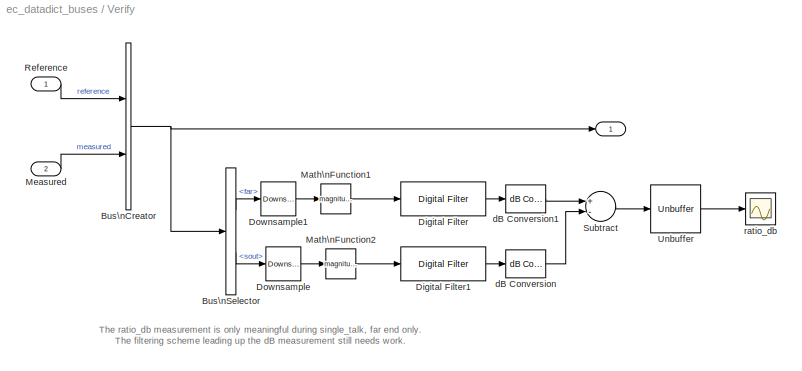
BLOCK [SubSystem] Verify
  Ports = [2, 1]
  RequestExecContextInheritance = off
  SID = 176
BLOCK [Outport] Verify/  
  IconDisplay = Port number
  SID = 192
BLOCK [BusCreator] Verify/Bus\nCreator
  DisplayOption = bar
  InheritFromInputs = on
  Inputs = 2
  Ports = [2, 1]
  SID = 179
BLOCK [BusSelector] Verify/Bus\nSelector
  OutputAsBus = off
  OutputSignals = reference.far,measured.sout
  Ports = [1, 2]
  SID = 180
BLOCK [Reference] Verify/Digital Filter  REF=dsparch4/Digital Filter
  AllPoleFiltStruct = Direct form
  BiQuadCoeffs = [1 0.3 0.4 1 0.1 0.2]
  CoeffSource = Specify via dialog
  DenCoeffs = [1 0.1]
  FIRFiltStruct = Direct form
  FiltPerSampPopup = One filter per frame
  FilterSource = Specify via dialog
  IC = 0
  ICden = 0
  ICnum = 0
  IIRFiltStruct = Direct form II transposed
  LatticeCoeffs = [0.2 0.4]
  LockScale = off
  NumCoeffs = [ones(1,80)/80]
  Ports = [1, 1]
  SID = 181
  ScaleValues = 1
  SourceBlock = dsparch4/Digital Filter
  SourceProductBaseCode = DS
  SourceProductName = DSP System Toolbox
  SourceType = Digital Filter
  TypePopup = FIR (all zeros)
  accumFracLength = 30
  accumMode = Same as product output
  accumWordLength = 32
  additionalParams = off
  allowOverrides = on
  denIgnore = on
  dfiltObjectName = dfilt.dffir([1 2 1])
  firstCoeffFracLength = 15
  firstCoeffMode = Same word length as input
  firstCoeffWordLength = 16
  memoryFracLength = 15
  memoryMode = Same as accumulator
  memoryWordLength = 16
  multiplicandFracLength = 30
  multiplicandMode = Same as output
  multiplicandWordLength = 32
  outputFracLength = 15
  outputMode = Same as accumulator
  outputWordLength = 16
  overflowMode = off
  prodOutputFracLength = 30
  prodOutputMode = Same as input
  prodOutputWordLength = 32
  roundingMode = Floor
  scaleValueFracLength = 14
  secondCoeffFracLength = 15
  secondCoeffMode = Same as numerator
  secondCoeffWordLength = 16
  showAcc = off
  showCoeff = off
  showMem = off
  showMpy = off
  showOut = off
  stageIOMode = Same as input
  stageIOWordLength = 16
  stageInFracLength = 15
  stageOutFracLength = 15
  tapSumFracLength = 30
  tapSumMode = Same as input
  tapSumWordLength = 32
  thirdCoeffFracLength = 15
  thirdCoeffMode = Same as input
  thirdCoeffWordLength = 16
BLOCK [Reference] Verify/Digital Filter1  REF=dsparch4/Digital Filter
  AllPoleFiltStruct = Direct form
  BiQuadCoeffs = [1 0.3 0.4 1 0.1 0.2]
  CoeffSource = Specify via dialog
  DenCoeffs = [1 0.1]
  FIRFiltStruct = Direct form
  FiltPerSampPopup = One filter per frame
  FilterSource = Specify via dialog
  IC = 0
  ICden = 0
  ICnum = 0
  IIRFiltStruct = Direct form II transposed
  LatticeCoeffs = [0.2 0.4]
  LockScale = off
  NumCoeffs = [ones(1,80)/80]
  Ports = [1, 1]
  SID = 182
  ScaleValues = 1
  SourceBlock = dsparch4/Digital Filter
  SourceProductBaseCode = DS
  SourceProductName = DSP System Toolbox
  SourceType = Digital Filter
  TypePopup = FIR (all zeros)
  accumFracLength = 30
  accumMode = Same as product output
  accumWordLength = 32
  additionalParams = off
  allowOverrides = on
  denIgnore = on
  dfiltObjectName = dfilt.dffir([1 2 1])
  firstCoeffFracLength = 15
  firstCoeffMode = Same word length as input
  firstCoeffWordLength = 16
  memoryFracLength = 15
  memoryMode = Same as accumulator
  memoryWordLength = 16
  multiplicandFracLength = 30
  multiplicandMode = Same as output
  multiplicandWordLength = 32
  outputFracLength = 15
  outputMode = Same as accumulator
  outputWordLength = 16
  overflowMode = off
  prodOutputFracLength = 30
  prodOutputMode = Same as input
  prodOutputWordLength = 32
  roundingMode = Floor
  scaleValueFracLength = 14
  secondCoeffFracLength = 15
  secondCoeffMode = Same as numerator
  secondCoeffWordLength = 16
  showAcc = off
  showCoeff = off
  showMem = off
  showMpy = off
  showOut = off
  stageIOMode = Same as input
  stageIOWordLength = 16
  stageInFracLength = 15
  stageOutFracLength = 15
  tapSumFracLength = 30
  tapSumMode = Same as input
  tapSumWordLength = 32
  thirdCoeffFracLength = 15
  thirdCoeffMode = Same as input
  thirdCoeffWordLength = 16
BLOCK [Reference] Verify/Downsample  REF=dspsigops/Downsample
  N = 10
  Ports = [1, 1]
  SID = 183
  SourceBlock = dspsigops/Downsample
  SourceProductBaseCode = DS
  SourceProductName = DSP System Toolbox
  SourceType = Downsample
  fmode = Maintain input frame size
  ic = 0
  phase = 0
  smode = Allow multirate
BLOCK [Reference] Verify/Downsample1  REF=dspsigops/Downsample
  N = 10
  Ports = [1, 1]
  SID = 184
  SourceBlock = dspsigops/Downsample
  SourceProductBaseCode = DS
  SourceProductName = DSP System Toolbox
  SourceType = Downsample
  fmode = Maintain input frame size
  ic = 0
  phase = 0
  smode = Allow multirate
BLOCK [Math] Verify/Math\nFunction1
  Operator = magnitude^2
  Ports = [1, 1]
  SID = 185
BLOCK [Math] Verify/Math\nFunction2
  Operator = magnitude^2
  Ports = [1, 1]
  SID = 186
BLOCK [Inport] Verify/Measured
  IconDisplay = Port number
  Port = 2
  SID = 178
BLOCK [Inport] Verify/Reference
  IconDisplay = Port number
  SID = 177
BLOCK [Sum] Verify/Subtract
  InputSameDT = off
  Inputs = +-
  OutDataTypeStr = Inherit: Inherit via internal rule
  Ports = [2, 1]
  SID = 187
  SaturateOnIntegerOverflow = off
BLOCK [Reference] Verify/Unbuffer  REF=dspbuff3/Unbuffer
  Ports = [1, 1]
  SID = 188
  SourceBlock = dspbuff3/Unbuffer
  SourceProductBaseCode = DS
  SourceProductName = DSP System Toolbox
  SourceType = Unbuffer
  ic = 0
BLOCK [Reference] Verify/dB Conversion  REF=dspmathops/dB Conversion
  FunctionWithSeparateData = off
  Ports = [1, 1]
  R = 1
  RTWMemSecDataConstants = Inherit from model
  RTWMemSecDataInternal = Inherit from model
  RTWMemSecDataParameters = Inherit from model
  RTWMemSecFuncExecute = Inherit from model
  RTWMemSecFuncInitTerm = Inherit from model
  SID = 189
  ShowPortLabels = FromPortIcon
  SourceBlock = dspmathops/dB Conversion
  SourceProductBaseCode = DS
  SourceProductName = DSP System Toolbox
  SourceType = dB Conversion
  SystemSampleTime = -1
  dBtype = dB
  fuzz = on
  intype = Power
BLOCK [Reference] Verify/dB Conversion1  REF=dspmathops/dB Conversion
  FunctionWithSeparateData = off
  Ports = [1, 1]
  R = 1
  RTWMemSecDataConstants = Inherit from model
  RTWMemSecDataInternal = Inherit from model
  RTWMemSecDataParameters = Inherit from model
  RTWMemSecFuncExecute = Inherit from model
  RTWMemSecFuncInitTerm = Inherit from model
  SID = 190
  ShowPortLabels = FromPortIcon
  SourceBlock = dspmathops/dB Conversion
  SourceProductBaseCode = DS
  SourceProductName = DSP System Toolbox
  SourceType = dB Conversion
  SystemSampleTime = -1
  dBtype = dB
  fuzz = on
  intype = Power
BLOCK [Scope] Verify/ratio_db
  Floating = off
  NumInputPorts = 1
  Ports = [1]
  SID = 191
  ScopeSpecificationString = C++SS(StrPVP('Location','[1261, 693, 1585, 932]'),StrPVP('Open','off'),MxPVP('AxesTitles',54,'struct(''axes1'',''%<SignalLabel>'')'),StrPVP('YMin','0'),StrPVP('YMax','50'),StrPVP('DataFormat','StructureWithTime'),StrPVP('MaxDataPoints','50000'),StrPVP('BlockParamSampleTime','0'),StrPVP('LimitDataPoints','on'),StrPVP('Decimation','1'),StrPVP('BlockParamSampleInput','off'))
ANNOTATION (root): % Load Data Dictionary\nec_load_data_dictionary
ANNOTATION (root): Echo Canceller \nAlgorithm Test Bench
ANNOTATION Echo_Canceller: bulk delay in this model is assumed a calibration parameter that does not change\nuse rounding = nearest for improved performance
ANNOTATION Specify: 1. sout (echo cancelled)\n2. far only\n3. near only\n4. sin (has echo)
ANNOTATION Specify: ec_scopes('close')
ANNOTATION Specify: ec_scopes('open')
ANNOTATION Specify: need text box to show what signal is selected
ANNOTATION Specify/Far End Sources/VCO-open to tune frequency/Discrete-Time\nVCO: Amplitude
ANNOTATION Specify/Far End Sources/VCO-open to tune frequency/Discrete-Time\nVCO: Center Freq
ANNOTATION Specify/Far End Sources/VCO-open to tune frequency/Discrete-Time\nVCO: Phase Accumulator\nModulus
ANNOTATION Specify/Far End Sources/VCO-open to tune frequency/Discrete-Time\nVCO: VCO Sensitivity
ANNOTATION Specify/Far End Sources/VCO-open to tune frequency/Discrete-Time\nVCO: initial condx=Ph
ANNOTATION Specify/Near End Sources/VCO-open to tune frequency/Discrete-Time\nVCO: Amplitude
ANNOTATION Specify/Near End Sources/VCO-open to tune frequency/Discrete-Time\nVCO: Center Freq
ANNOTATION Specify/Near End Sources/VCO-open to tune frequency/Discrete-Time\nVCO: Phase Accumulator\nModulus
ANNOTATION Specify/Near End Sources/VCO-open to tune frequency/Discrete-Time\nVCO: VCO Sensitivity
ANNOTATION Specify/Near End Sources/VCO-open to tune frequency/Discrete-Time\nVCO: initial condx=Ph
ANNOTATION Verify: The ratio_db measurement is only meaningful during single_talk, far end only.\nThe filtering scheme leading up the dB measurement still needs work.
LINE 1. Left Reference\nFreq In Hz\nFrom Cell5:1 -> Manual Switch3:2
LINE 1. Left Reference\nFreq In Hz\nFrom Cell6:1 -> Manual Switch3:1
LINE Convert/  :1 -> Convert/Bus\nSelector:1
LINE Convert/Bus\nSelector:1 -> Convert/Data Type Conversion:1
LINE Convert/Bus\nSelector:2 -> Convert/Data Type Conversion1:1
LINE Convert/Bus\nSelector:3 -> Convert/Data Type Conversion2:1
LINE Convert/Bus\nSelector:4 -> Convert/Data Type Conversion3:1
LINE Convert/Bus\nSelector:5 -> Convert/Data Type Conversion4:1
LINE Convert/Data Type Conversion1:1 -> Convert/sin:1
LINE Convert/Data Type Conversion2:1 -> Convert/enable:1
LINE Convert/Data Type Conversion3:1 -> Convert/reset:1
LINE Convert/Data Type Conversion4:1 -> Convert/mu:1
LINE Convert/Data Type Conversion:1 -> Convert/rin:1
LINE Convert1/Bus\nCreator:1 -> Convert1/ :1
LINE Convert1/Data Type Conversion1:1 -> Convert1/Bus\nCreator:2
LINE Convert1/Data Type Conversion:1 -> Convert1/Bus\nCreator:1
LINE Convert1/Wts:1 -> Convert1/Data Type Conversion:1
LINE Convert1/sout:1 -> Convert1/Data Type Conversion1:1
LINE Convert1:1 -> Verify:2
LINE Convert:1 -> Echo_Canceller:1
LINE Convert:2 -> Echo_Canceller:2
LINE Convert:3 -> Echo_Canceller:3
LINE Convert:4 -> Echo_Canceller:4
LINE Convert:5 -> Echo_Canceller:5
LINE Echo_Canceller/  mic:1 -> Echo_Canceller/LMS Filter:2
LINE Echo_Canceller/  mic\n(Duplicate2):1 -> Echo_Canceller/Multiport\nSwitch:2
LINE Echo_Canceller/ enable:1 -> Echo_Canceller/Multiport\nSwitch:1
LINE Echo_Canceller/ far :1 -> Echo_Canceller/Bulk Delay:1
LINE Echo_Canceller/Bulk Delay:1 -> Echo_Canceller/LMS Filter:1
LINE Echo_Canceller/LMS Filter:1 -> Echo_Canceller/Terminator:1
LINE Echo_Canceller/LMS Filter:2 -> Echo_Canceller/Multiport\nSwitch:3
LINE Echo_Canceller/LMS Filter:3 -> Echo_Canceller/Wts:1
LINE Echo_Canceller/Multiport\nSwitch:1 -> Echo_Canceller/Sout:1
LINE Echo_Canceller/mu:1 -> Echo_Canceller/LMS Filter:3
LINE Echo_Canceller/reset:1 -> Echo_Canceller/LMS Filter:4
LINE Echo_Canceller:1 -> Convert1:1
LINE Echo_Canceller:2 -> Convert1:2
LINE Manual Switch3:1 -> See:enable
LINE See/Before and After EC/Bus\nSelector:1 -> See/Before and After EC/Matrix\nConcatenate1:1
LINE See/Before and After EC/Bus\nSelector:2 -> See/Before and After EC/Matrix\nConcatenate1:2
LINE See/Before and After EC/In1:1 -> See/Before and After EC/Bus\nSelector:1
LINE See/Before and After EC/Matrix\nConcatenate1:1 -> See/Before and After EC/sin_sout:1
LINE See/Before and After EC:1 -> See/Sin vs Sout:1
NET See/In:1 -> See/Before and After EC:1, See/Original Inputs:1, See/Taps Compare:1
LINE See/Original Inputs/Bus\nSelector:1 -> See/Original Inputs/Matrix\nConcatenate1:1
LINE See/Original Inputs/Bus\nSelector:2 -> See/Original Inputs/Matrix\nConcatenate1:2
LINE See/Original Inputs/In1:1 -> See/Original Inputs/Bus\nSelector:1
LINE See/Original Inputs/Matrix\nConcatenate1:1 -> See/Original Inputs/far_near:1
LINE See/Original Inputs:1 -> See/Far vs Near:1
LINE See/Taps Compare/Bus\nSelector:1 -> See/Taps Compare/Data Type Conversion:1
LINE See/Taps Compare/Data Type Conversion:1 -> See/Taps Compare/Matrix\nConcatenate2:2
LINE See/Taps Compare/Ideal Taps\nwith \nZero Padding:1 -> See/Taps Compare/Matrix\nConcatenate1:1
LINE See/Taps Compare/In1:1 -> See/Taps Compare/Bus\nSelector:1
LINE See/Taps Compare/Matrix\nConcatenate1:1 -> See/Taps Compare/Wts:1
LINE See/Taps Compare/Matrix\nConcatenate2:1 -> See/Taps Compare/Matrix\nConcatenate1:2
LINE See/Taps Compare/Zeros1:1 -> See/Taps Compare/Matrix\nConcatenate2:3
LINE See/Taps Compare/Zeros:1 -> See/Taps Compare/Matrix\nConcatenate2:1
LINE See/Taps Compare:1 -> See/Wideal vs WMUT:1
LINE Specify/1. Left Reference\nFreq In Hz\nFrom Cell1:1 -> Specify/Manual Switch1:2
LINE Specify/1. Left Reference\nFreq In Hz\nFrom Cell2:1 -> Specify/Manual Switch2:2
LINE Specify/1. Left Reference\nFreq In Hz\nFrom Cell3:1 -> Specify/Manual Switch2:1
LINE Specify/1. Left Reference\nFreq In Hz\nFrom Cell4:1 -> Specify/mu gain:1
LINE Specify/1. Left Reference\nFreq In Hz\nFrom Cell5:1 -> Specify/Manual Switch3:2
LINE Specify/1. Left Reference\nFreq In Hz\nFrom Cell6:1 -> Specify/Manual Switch3:1
LINE Specify/1. Left Reference\nFreq In Hz\nFrom Cell7:1 -> Specify/Manual Switch1:1
LINE Specify/1. Left Reference\nFreq In Hz\nFrom Cell8:1 -> Specify/ListenTo:1
LINE Specify/Bus\nCreator:1 -> Specify/Out:1
LINE Specify/Constant1:1 -> Specify/Bus\nCreator:4
LINE Specify/Constant:1 -> Specify/Bus\nCreator:3
LINE Specify/Far End Sources/1. Left Reference\nFreq In Hz\nFrom Cell3:1 -> Specify/Far End Sources/FarEnd\nSelect:1
LINE Specify/Far End Sources/Chirp:1 -> Specify/Far End Sources/Multiport\nSwitch1:3
LINE Specify/Far End Sources/FarEnd\nSelect:1 -> Specify/Far End Sources/Multiport\nSwitch1:1
LINE Specify/Far End Sources/From Wave File2:1 -> Specify/Far End Sources/Multiport\nSwitch1:5
LINE Specify/Far End Sources/Multiport\nSwitch1:1 -> Specify/Far End Sources/Out1:1
LINE Specify/Far End Sources/NoiseLevelFar:1 -> Specify/Far End Sources/Sum:2
LINE Specify/Far End Sources/Random\nSource1:1 -> Specify/Far End Sources/NoiseLevelFar:1
LINE Specify/Far End Sources/Random\nSource:1 -> Specify/Far End Sources/Multiport\nSwitch1:4
LINE Specify/Far End Sources/Sum:1 -> Specify/Far End Sources/Multiport\nSwitch1:2
LINE Specify/Far End Sources/VCO-open to tune frequency/1. Left Reference\nFreq In Hz\nFrom Cell:1 -> Specify/Far End Sources/VCO-open to tune frequency/FE FreqAdjust:1
LINE Specify/Far End Sources/VCO-open to tune frequency/Buffer2:1 -> Specify/Far End Sources/VCO-open to tune frequency/Out1:1
LINE Specify/Far End Sources/VCO-open to tune frequency/Discrete-Time\nVCO/Discrete\nConstant1:1 -> Specify/Far End Sources/VCO-open to tune frequency/Discrete-Time\nVCO/Sum1:2
LINE Specify/Far End Sources/VCO-open to tune frequency/Discrete-Time\nVCO/Discrete\nConstant2:1 -> Specify/Far End Sources/VCO-open to tune frequency/Discrete-Time\nVCO/Math\nFunction:2
LINE Specify/Far End Sources/VCO-open to tune frequency/Discrete-Time\nVCO/Math\nFunction:1 -> Specify/Far End Sources/VCO-open to tune frequency/Discrete-Time\nVCO/Unit Delay:1
LINE Specify/Far End Sources/VCO-open to tune frequency/Discrete-Time\nVCO/Sensitivity2:1 -> Specify/Far End Sources/VCO-open to tune frequency/Discrete-Time\nVCO/out_1:1
LINE Specify/Far End Sources/VCO-open to tune frequency/Discrete-Time\nVCO/Sensitivity:1 -> Specify/Far End Sources/VCO-open to tune frequency/Discrete-Time\nVCO/Sum1:1
LINE Specify/Far End Sources/VCO-open to tune frequency/Discrete-Time\nVCO/Sum1:1 -> Specify/Far End Sources/VCO-open to tune frequency/Discrete-Time\nVCO/Math\nFunction:1
LINE Specify/Far End Sources/VCO-open to tune frequency/Discrete-Time\nVCO/Trigonometric\nFunction:1 -> Specify/Far End Sources/VCO-open to tune frequency/Discrete-Time\nVCO/Sensitivity2:1
NET Specify/Far End Sources/VCO-open to tune frequency/Discrete-Time\nVCO/Unit Delay:1 -> Specify/Far End Sources/VCO-open to tune frequency/Discrete-Time\nVCO/Sum1:3, Specify/Far End Sources/VCO-open to tune frequency/Discrete-Time\nVCO/Trigonometric\nFunction:1
LINE Specify/Far End Sources/VCO-open to tune frequency/Discrete-Time\nVCO/in_1:1 -> Specify/Far End Sources/VCO-open to tune frequency/Discrete-Time\nVCO/Sensitivity:1
LINE Specify/Far End Sources/VCO-open to tune frequency/Discrete-Time\nVCO:1 -> Specify/Far End Sources/VCO-open to tune frequency/Buffer2:1
LINE Specify/Far End Sources/VCO-open to tune frequency/FE FreqAdjust:1 -> Specify/Far End Sources/VCO-open to tune frequency/Discrete-Time\nVCO:1
LINE Specify/Far End Sources/VCO-open to tune frequency:1 -> Specify/Far End Sources/Sum:1
LINE Specify/Far End Sources:1 -> Specify/Far End\nGain:1
LINE Specify/Far End\nGain:1 -> Specify/Bus\nCreator:1
LINE Specify/ListenTo:1 -> Specify/Goto1:1
LINE Specify/Manual Switch1:1 -> Specify/Bus\nCreator:6
LINE Specify/Manual Switch2:1 -> Specify/Bus\nCreator:5
LINE Specify/Manual Switch3:1 -> Specify/Goto7:1
LINE Specify/Near End Sources/1. Left Reference\nFreq In Hz\nFrom Cell3:1 -> Specify/Near End Sources/NearEnd\nSelect:1
LINE Specify/Near End Sources/Chirp:1 -> Specify/Near End Sources/Multiport\nSwitch1:3
LINE Specify/Near End Sources/From Wave File2:1 -> Specify/Near End Sources/Multiport\nSwitch1:5
LINE Specify/Near End Sources/Multiport\nSwitch1:1 -> Specify/Near End Sources/Out1:1
LINE Specify/Near End Sources/NearEnd\nSelect:1 -> Specify/Near End Sources/Multiport\nSwitch1:1
LINE Specify/Near End Sources/NoiseLevelFar:1 -> Specify/Near End Sources/Sum:2
LINE Specify/Near End Sources/Random\nSource1:1 -> Specify/Near End Sources/NoiseLevelFar:1
LINE Specify/Near End Sources/Random\nSource:1 -> Specify/Near End Sources/Multiport\nSwitch1:4
LINE Specify/Near End Sources/Sum:1 -> Specify/Near End Sources/Multiport\nSwitch1:2
LINE Specify/Near End Sources/VCO-open to tune frequency/1. Left Reference\nFreq In Hz\nFrom Cell:1 -> Specify/Near End Sources/VCO-open to tune frequency/NE FreqAdjust:1
LINE Specify/Near End Sources/VCO-open to tune frequency/Buffer2:1 -> Specify/Near End Sources/VCO-open to tune frequency/Out1:1
LINE Specify/Near End Sources/VCO-open to tune frequency/Discrete-Time\nVCO/Discrete\nConstant1:1 -> Specify/Near End Sources/VCO-open to tune frequency/Discrete-Time\nVCO/Sum1:2
LINE Specify/Near End Sources/VCO-open to tune frequency/Discrete-Time\nVCO/Discrete\nConstant2:1 -> Specify/Near End Sources/VCO-open to tune frequency/Discrete-Time\nVCO/Math\nFunction:2
LINE Specify/Near End Sources/VCO-open to tune frequency/Discrete-Time\nVCO/Math\nFunction:1 -> Specify/Near End Sources/VCO-open to tune frequency/Discrete-Time\nVCO/Unit Delay:1
LINE Specify/Near End Sources/VCO-open to tune frequency/Discrete-Time\nVCO/Sensitivity2:1 -> Specify/Near End Sources/VCO-open to tune frequency/Discrete-Time\nVCO/out_1:1
LINE Specify/Near End Sources/VCO-open to tune frequency/Discrete-Time\nVCO/Sensitivity:1 -> Specify/Near End Sources/VCO-open to tune frequency/Discrete-Time\nVCO/Sum1:1
LINE Specify/Near End Sources/VCO-open to tune frequency/Discrete-Time\nVCO/Sum1:1 -> Specify/Near End Sources/VCO-open to tune frequency/Discrete-Time\nVCO/Math\nFunction:1
LINE Specify/Near End Sources/VCO-open to tune frequency/Discrete-Time\nVCO/Trigonometric\nFunction:1 -> Specify/Near End Sources/VCO-open to tune frequency/Discrete-Time\nVCO/Sensitivity2:1
NET Specify/Near End Sources/VCO-open to tune frequency/Discrete-Time\nVCO/Unit Delay:1 -> Specify/Near End Sources/VCO-open to tune frequency/Discrete-Time\nVCO/Sum1:3, Specify/Near End Sources/VCO-open to tune frequency/Discrete-Time\nVCO/Trigonometric\nFunction:1
LINE Specify/Near End Sources/VCO-open to tune frequency/Discrete-Time\nVCO/in_1:1 -> Specify/Near End Sources/VCO-open to tune frequency/Discrete-Time\nVCO/Sensitivity:1
LINE Specify/Near End Sources/VCO-open to tune frequency/Discrete-Time\nVCO:1 -> Specify/Near End Sources/VCO-open to tune frequency/Buffer2:1
LINE Specify/Near End Sources/VCO-open to tune frequency/NE FreqAdjust:1 -> Specify/Near End Sources/VCO-open to tune frequency/Discrete-Time\nVCO:1
LINE Specify/Near End Sources/VCO-open to tune frequency:1 -> Specify/Near End Sources/Sum:1
LINE Specify/Near End Sources:1 -> Specify/Near End\nGain:1
LINE Specify/Near End\nGain:1 -> Specify/Bus\nCreator:2
LINE Specify/mu gain:1 -> Specify/Bus\nCreator:7
LINE Specify:1 -> Transmit:1
LINE Transmit/Bus\nCreator:1 -> Transmit/Out3:1
LINE Transmit/Bus\nSelector:1 -> Transmit/Spkr to Mic\nCoupling:1
NET Transmit/Bus\nSelector:2 -> Transmit/Bus\nCreator:1, Transmit/Spkr to Mic\nCoupling:2
LINE Transmit/Bus\nSelector:3 -> Transmit/Talker to Mic\nCoupling:1
NET Transmit/Bus\nSelector:4 -> Transmit/Bus\nCreator:3, Transmit/Talker to Mic\nCoupling:2
LINE Transmit/Bus\nSelector:5 -> Transmit/Bus\nCreator:4
LINE Transmit/Bus\nSelector:6 -> Transmit/Bus\nCreator:5
LINE Transmit/Bus\nSelector:7 -> Transmit/Bus\nCreator:6
LINE Transmit/In1:1 -> Transmit/Bus\nSelector:1
LINE Transmit/Spkr to Mic\nCoupling/Digital\nFilter Design:1 -> Transmit/Spkr to Mic\nCoupling/Gain:1
LINE Transmit/Spkr to Mic\nCoupling/Gain:1 -> Transmit/Spkr to Mic\nCoupling/Multiport\nSwitch:3
NET Transmit/Spkr to Mic\nCoupling/In:1 -> Transmit/Spkr to Mic\nCoupling/Multiport\nSwitch:2, Transmit/Spkr to Mic\nCoupling/Time\nDelay:1
LINE Transmit/Spkr to Mic\nCoupling/Multiport\nSwitch:1 -> Transmit/Spkr to Mic\nCoupling/Out:1
LINE Transmit/Spkr to Mic\nCoupling/Time\nDelay:1 -> Transmit/Spkr to Mic\nCoupling/Digital\nFilter Design:1
LINE Transmit/Spkr to Mic\nCoupling/enable:1 -> Transmit/Spkr to Mic\nCoupling/Multiport\nSwitch:1
LINE Transmit/Spkr to Mic\nCoupling:1 -> Transmit/Sum Talker and\nAudio From Speaker2:1
LINE Transmit/Sum Talker and\nAudio From Speaker2:1 -> Transmit/Bus\nCreator:2
LINE Transmit/Talker to Mic\nCoupling/Digital\nFilter Design:1 -> Transmit/Talker to Mic\nCoupling/Gain:1
LINE Transmit/Talker to Mic\nCoupling/Gain:1 -> Transmit/Talker to Mic\nCoupling/Multiport\nSwitch:3
NET Transmit/Talker to Mic\nCoupling/In:1 -> Transmit/Talker to Mic\nCoupling/Multiport\nSwitch:2, Transmit/Talker to Mic\nCoupling/Time\nDelay:1
LINE Transmit/Talker to Mic\nCoupling/Multiport\nSwitch:1 -> Transmit/Talker to Mic\nCoupling/Out:1
LINE Transmit/Talker to Mic\nCoupling/Time\nDelay:1 -> Transmit/Talker to Mic\nCoupling/Digital\nFilter Design:1
LINE Transmit/Talker to Mic\nCoupling/enable:1 -> Transmit/Talker to Mic\nCoupling/Multiport\nSwitch:1
LINE Transmit/Talker to Mic\nCoupling:1 -> Transmit/Sum Talker and\nAudio From Speaker2:2
NET Transmit:1 -> Convert:1, Verify:1
NET Verify/Bus\nCreator:1 -> Verify/  :1, Verify/Bus\nSelector:1
LINE Verify/Bus\nSelector:1 -> Verify/Downsample1:1
LINE Verify/Bus\nSelector:2 -> Verify/Downsample:1
LINE Verify/Digital Filter1:1 -> Verify/dB Conversion:1
LINE Verify/Digital Filter:1 -> Verify/dB Conversion1:1
LINE Verify/Downsample1:1 -> Verify/Math\nFunction1:1
LINE Verify/Downsample:1 -> Verify/Math\nFunction2:1
LINE Verify/Math\nFunction1:1 -> Verify/Digital Filter:1
LINE Verify/Math\nFunction2:1 -> Verify/Digital Filter1:1
LINE Verify/Measured:1 -> Verify/Bus\nCreator:2
LINE Verify/Reference:1 -> Verify/Bus\nCreator:1
LINE Verify/Subtract:1 -> Verify/Unbuffer:1
LINE Verify/Unbuffer:1 -> Verify/ratio_db:1
LINE Verify/dB Conversion1:1 -> Verify/Subtract:1
LINE Verify/dB Conversion:1 -> Verify/Subtract:2
LINE Verify:1 -> See:1
note: NET lines group one-source signal fan-out (src -> all destinations, sorted); 1:1 wires keep LINE
